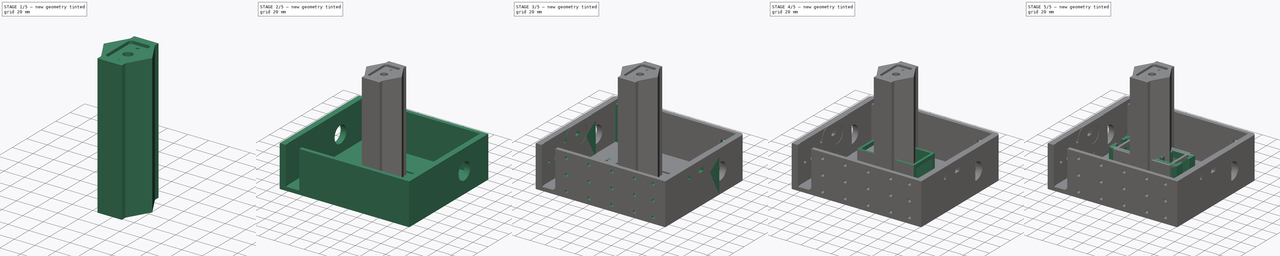
[diagram: build sequence overview — one tinted view per stage of 5, left to right]
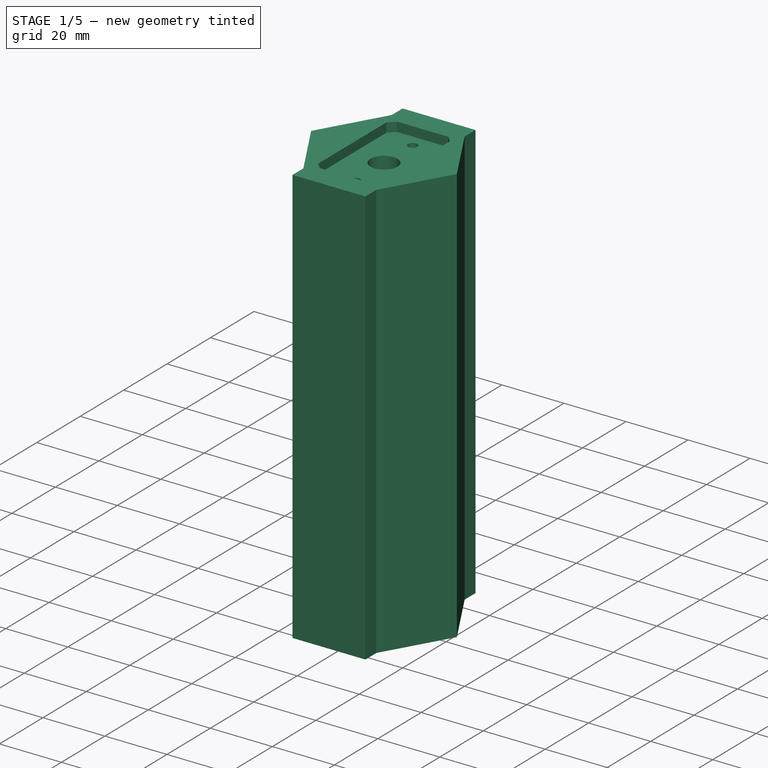
[diagram: stage 1 of 5 — iso view after this stage's code; geometry added in this stage tinted green]
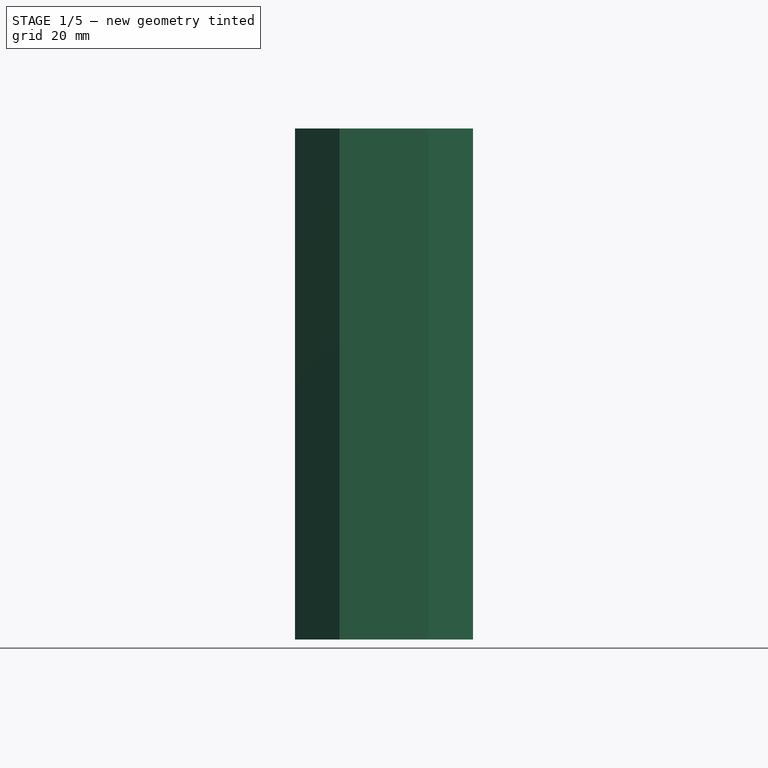
[diagram: stage 1 of 5 — front view after this stage's code; geometry added in this stage tinted green]
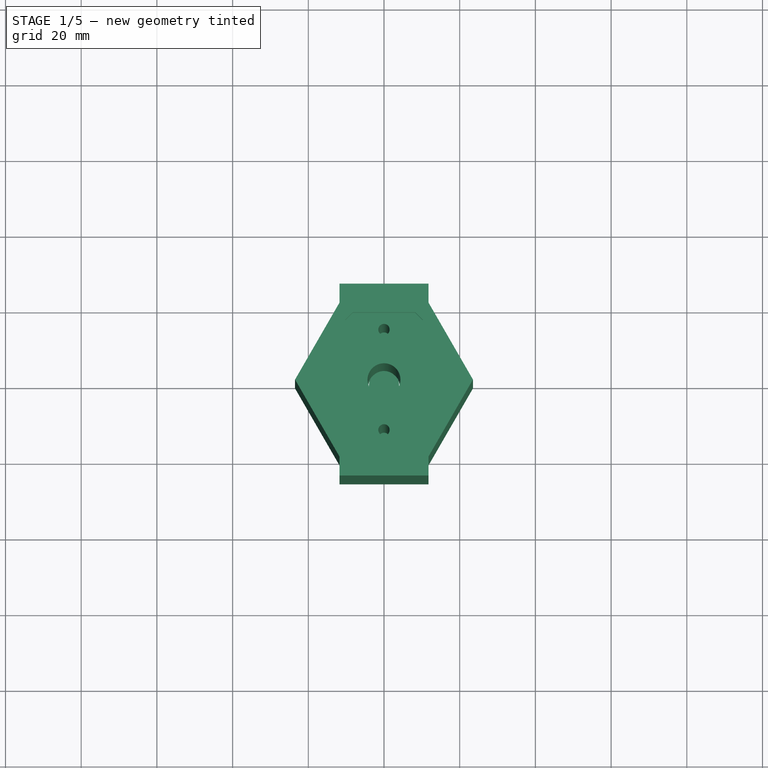
[diagram: stage 1 of 5 — top view after this stage's code; geometry added in this stage tinted green]
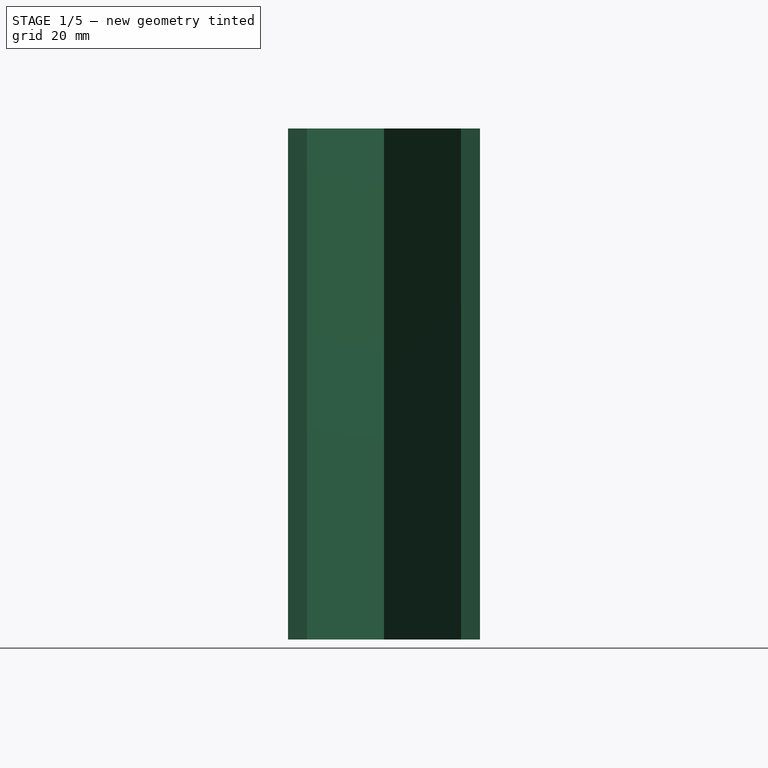
[diagram: stage 1 of 5 — right view after this stage's code; geometry added in this stage tinted green]
FCSTD DOCUMENT  (FreeCAD 1.0R39109 (Git))
Label: BeckbitV3
License: All rights reserved
LicenseURL: https://en.wikipedia.org/wiki/All_rights_reserved
objects: Sketcher::SketchObject×69, PartDesign::Pocket×46, PartDesign::Pad×24, PartDesign::Chamfer×20, PartDesign::Body×18, PartDesign::Fillet×14, PartDesign::FeaturePython×4
note: 476 computed .brp shape members not serialized (recipe doc carries the construction recipe); baked Part::Feature solids carry a one-line shape summary decoded from their .brp

FEATURE [Sketcher::SketchObject] Sketch046
  ArcFitTolerance = 1e-06
  AttachmentSupport = -> [XY_Plane015]
  FullyConstrained = true
  MakeInternals = false
  MapMode = 5
  sketch-geometry (7):
    g0: LineSegment StartX=23.5 StartY=0 StartZ=0 EndX=11.75 EndY=20.3516 EndZ=0
    g1: LineSegment StartX=11.75 StartY=20.3516 StartZ=0 EndX=-11.75 EndY=20.3516 EndZ=0
    g2: LineSegment StartX=-11.75 StartY=20.3516 StartZ=0 EndX=-23.5 EndY=-3.6e-15 EndZ=0
    g3: LineSegment StartX=-23.5 StartY=-3.6e-15 StartZ=0 EndX=-11.75 EndY=-20.3516 EndZ=0
    g4: LineSegment StartX=-11.75 StartY=-20.3516 StartZ=0 EndX=11.75 EndY=-20.3516 EndZ=0
    g5: LineSegment StartX=11.75 StartY=-20.3516 StartZ=0 EndX=23.5 EndY=0 EndZ=0
    g6: Circle [constr] CenterX=0 CenterY=0 CenterZ=0 NormalX=0 NormalY=0 NormalZ=1 AngleXU=0 Radius=23.5
  constraints (16):
    c: Coincident(g0,g1)
    c: Coincident(g1,g2)
    c: Coincident(g2,g3)
    c: Coincident(g3,g4)
    c: Coincident(g4,g5)
    c: Coincident(g5,g0)
    c: Equal(g0, g1-g5) x5
    c: PointOnObject(g0,g6)
    c: PointOnObject(g1,g6)
    c: PointOnObject(g2,g6)
    c: PointOnObject(g3,g6)
    c: PointOnObject(g4,g6)
    c: PointOnObject(g5,g6)
    c: Coincident(g6,g-1)
    c: PointOnObject(g5,g-1)
    c: Diameter(g6) = 47
FEATURE [PartDesign::Pad] Pad016  label="BasePad003"
  Direction = (0,0,1)
  Length = 135
  Length2 = 10
  Profile = -> Sketch046
  ReferenceAxis = -> Sketch046 [N_Axis]
  Refine = true
  Suppressed = false
  Type = 0
FEATURE [Sketcher::SketchObject] Sketch048
  ArcFitTolerance = 1e-06
  FullyConstrained = true
  MakeInternals = false
  MapMode = 5
  Placement = pos=(0,-20.3516,0) rot=(1,0,0;1.5708rad)
  sketch-geometry (4):
    g0: LineSegment StartX=-11.75 StartY=135 StartZ=0 EndX=-11.75 EndY=0 EndZ=0
    g1: LineSegment StartX=-11.75 StartY=0 StartZ=0 EndX=11.75 EndY=0 EndZ=0
    g2: LineSegment StartX=11.75 StartY=0 StartZ=0 EndX=11.75 EndY=135 EndZ=0
    g3: LineSegment StartX=11.75 StartY=135 StartZ=0 EndX=-11.75 EndY=135 EndZ=0
  constraints (10):
    c: Coincident(g0,g1)
    c: Coincident(g1,g2)
    c: Coincident(g2,g3)
    c: Coincident(g3,g0)
    c: Vertical(g0)
    c: Vertical(g2)
    c: Horizontal(g1)
    c: Horizontal(g3)
    c: Coincident(g0,g-5)
    c: Coincident(g1,g-6)
FEATURE [PartDesign::Pad] Pad017  label="ExtendPad"
  BaseFeature = -> Pad016
  Direction = (0,-1,2e-16)
  Length = 5
  Length2 = 10
  Profile = -> Sketch048
  ReferenceAxis = -> Sketch048 [N_Axis]
  Refine = true
  Suppressed = false
  Type = 0
FEATURE [Sketcher::SketchObject] Sketch049
  ArcFitTolerance = 1e-06
  AttachmentSupport = -> [Pad017]
  ExternalGeometry = -> [Pad017]
  FullyConstrained = true
  MakeInternals = false
  MapMode = 5
  Placement = pos=(-3.1e-15,20.3516,0) rot=(0,0.707107,0.707107;3.14159rad)
  sketch-geometry (4):
    g0: LineSegment StartX=-11.75 StartY=135 StartZ=0 EndX=-11.75 EndY=0 EndZ=0
    g1: LineSegment StartX=-11.75 StartY=0 StartZ=0 EndX=11.75 EndY=0 EndZ=0
    g2: LineSegment StartX=11.75 StartY=0 StartZ=0 EndX=11.75 EndY=135 EndZ=0
    g3: LineSegment StartX=11.75 StartY=135 StartZ=0 EndX=-11.75 EndY=135 EndZ=0
  constraints (10):
    c: Coincident(g0,g1)
    c: Coincident(g1,g2)
    c: Coincident(g2,g3)
    c: Coincident(g3,g0)
    c: Vertical(g0)
    c: Vertical(g2)
    c: Horizontal(g1)
    c: Horizontal(g3)
    c: Coincident(g0,g-4)
    c: Coincident(g1,g-6)
FEATURE [PartDesign::Pad] Pad018  label="ExtendPad001"
  BaseFeature = -> Pad017
  Direction = (0,1,-2e-16)
  Length = 5
  Length2 = 10
  Profile = -> Sketch049
  ReferenceAxis = -> Sketch049 [N_Axis]
  Refine = true
  Suppressed = false
  Type = 0
FEATURE [PartDesign::Body] Body001  label="MotorWheelGear"
  AllowCompound = false
  Group = -> [InvoluteGear,Sketch076,Pocket052]
  Origin = -> Origin001
  Placement = pos=(-63.2002,0.413012,28.8959) rot=(-0.129428,-0.983106,0.129428;1.58783rad)
  Tip = -> Pocket052
FEATURE [Sketcher::SketchObject] Sketch077
  ArcFitTolerance = 1e-06
  AttachmentSupport = -> [XY_Plane022]
  FullyConstrained = true
  MakeInternals = false
  MapMode = 5
  sketch-geometry (1):
    g0: Circle CenterX=0 CenterY=0 CenterZ=0 NormalX=0 NormalY=0 NormalZ=1 AngleXU=0 Radius=4
  constraints (2):
    c: Coincident(g0,g-1)
    c: Diameter(g0) = 8
FEATURE [PartDesign::Pad] Pad027
  Direction = (0,0,1)
  Length = 35
  Length2 = 10
  Profile = -> Sketch077
  ReferenceAxis = -> Sketch077 [N_Axis]
  Refine = true
  Suppressed = false
  Type = 0
FEATURE [Sketcher::SketchObject] Sketch078
  ArcFitTolerance = 1e-06
  AttachmentSupport = -> [XY_Plane023]
  FullyConstrained = true
  MakeInternals = false
  MapMode = 5
  sketch-geometry (5):
    g0: LineSegment StartX=-10 StartY=17.5 StartZ=0 EndX=-10 EndY=-17.5 EndZ=0
    g1: LineSegment StartX=-10 StartY=-17.5 StartZ=0 EndX=10 EndY=-17.5 EndZ=0
    g2: LineSegment StartX=10 StartY=-17.5 StartZ=0 EndX=10 EndY=17.5 EndZ=0
    g3: LineSegment StartX=10 StartY=17.5 StartZ=0 EndX=-10 EndY=17.5 EndZ=0
    g4: GeomPoint [constr] X=0 Y=0 Z=0
  constraints (12):
    c: Coincident(g0,g1)
    c: Coincident(g1,g2)
    c: Coincident(g2,g3)
    c: Coincident(g3,g0)
    c: Vertical(g0)
    c: Vertical(g2)
    c: Horizontal(g1)
    c: Horizontal(g3)
    c: Symmetric(g2,g0,g4)
    c: Coincident(g4,g-1)
    c: DistanceY(g0,g0) = 35
    c: DistanceX(g3,g3) = 20
FEATURE [PartDesign::Pad] Pad028  label="BasePad006"
  Direction = (0,0,1)
  Length = 3
  Length2 = 10
  Profile = -> Sketch078
  ReferenceAxis = -> Sketch078 [N_Axis]
  Refine = true
  Suppressed = false
  Type = 0
FEATURE [Sketcher::SketchObject] Sketch079
  ArcFitTolerance = 1e-06
  AttachmentSupport = -> [Pad028]
  FullyConstrained = true
  MakeInternals = false
  MapMode = 5
  Placement = pos=(0,0,3) rot=(0,0,1;0rad)
  sketch-geometry (1):
    g0: Circle CenterX=0 CenterY=0 CenterZ=0 NormalX=0 NormalY=0 NormalZ=1 AngleXU=0 Radius=6
  constraints (2):
    c: Coincident(g0,g-1)
    c: Diameter(g0) = 12
FEATURE [PartDesign::Pad] Pad029  label="AxlePocketPad002"
  BaseFeature = -> Pad028
  Direction = (0,0,1)
  Length = 5
  Length2 = 10
  Profile = -> Sketch079
  ReferenceAxis = -> Sketch079 [N_Axis]
  Refine = true
  Suppressed = false
  Type = 0
FEATURE [Sketcher::SketchObject] Sketch080
  ArcFitTolerance = 1e-06
  AttachmentSupport = -> [Pad029]
  FullyConstrained = true
  MakeInternals = false
  MapMode = 5
  Placement = pos=(0,0,8) rot=(0,0,1;0rad)
  sketch-geometry (1):
    g0: Circle CenterX=0 CenterY=0 CenterZ=0 NormalX=0 NormalY=0 NormalZ=1 AngleXU=0 Radius=4.25
  constraints (2):
    c: Coincident(g0,g-1)
    c: Diameter(g0) = 8.5
FEATURE [PartDesign::Pocket] Pocket053  label="AlxePocket"
  BaseFeature = -> Pad029
  Direction = (0,0,-1)
  Length = 5
  Length2 = 5
  Profile = -> Sketch080
  ReferenceAxis = -> Sketch080 [N_Axis]
  Refine = true
  Suppressed = false
  Type = 1
FEATURE [Sketcher::SketchObject] Sketch081
  ArcFitTolerance = 1e-06
  AttachmentSupport = -> [XZ_Plane023]
  FullyConstrained = true
  MakeInternals = false
  MapMode = 5
  Placement = pos=(0,0,0) rot=(1,0,0;1.5708rad)
  sketch-geometry (1):
    g0: Circle CenterX=0 CenterY=5.6996 CenterZ=0 NormalX=0 NormalY=0 NormalZ=1 AngleXU=0 Radius=1.5
  constraints (3):
    c: PointOnObject(g0,g-2)
    c: Diameter(g0) = 3
    c: Block(g0)
FEATURE [PartDesign::Pocket] Pocket054  label="ScrewPocket014"
  BaseFeature = -> Pocket053
  Direction = (0,1,-2e-16)
  Length = 5
  Length2 = 5
  Midplane = true
  Profile = -> Sketch081
  ReferenceAxis = -> Sketch081 [N_Axis]
  Refine = true
  Suppressed = false
  Type = 1
FEATURE [PartDesign::Body] Body023  label="DrumSpacer"
  AllowCompound = false
  Group = -> [Sketch078,Pad028,Sketch079,Pad029,Sketch080,Pocket053,Sketch081,Pocket054,Sketch082,Pocket055,Chamfer011,Chamfer012,Chamfer013,Chamfer014]
  Origin = -> Origin023
  Placement = pos=(72,-114,28) rot=(0,1,0;1.5708rad)
  Tip = -> Chamfer014
FEATURE [Sketcher::SketchObject] Sketch083
  ArcFitTolerance = 1e-06
  AttachmentSupport = -> [Pad018]
  FullyConstrained = true
  MakeInternals = false
  MapMode = 5
  Placement = pos=(0,0,0) rot=(1,0,0;3.14159rad)
  sketch-geometry (5):
    g0: LineSegment StartX=-10.25 StartY=17.75 StartZ=0 EndX=-10.25 EndY=-17.75 EndZ=0
    g1: LineSegment StartX=-10.25 StartY=-17.75 StartZ=0 EndX=10.25 EndY=-17.75 EndZ=0
    g2: LineSegment StartX=10.25 StartY=-17.75 StartZ=0 EndX=10.25 EndY=17.75 EndZ=0
    g3: LineSegment StartX=10.25 StartY=17.75 StartZ=0 EndX=-10.25 EndY=17.75 EndZ=0
    g4: GeomPoint [constr] X=0 Y=0 Z=0
  constraints (12):
    c: Coincident(g0,g1)
    c: Coincident(g1,g2)
    c: Coincident(g2,g3)
    c: Coincident(g3,g0)
    c: Vertical(g0)
    c: Vertical(g2)
    c: Horizontal(g1)
    c: Horizontal(g3)
    c: Symmetric(g2,g0,g4)
    c: Coincident(g4,g-1)
    c: DistanceX(g3,g3) = 20.5
    c: DistanceY(g0,g0) = 35.5
FEATURE [PartDesign::Pocket] Pocket056  label="SupportBasePocket"
  BaseFeature = -> Pad018
  Direction = (0,0,1)
  Length = 3
  Length2 = 5
  Profile = -> Sketch083
  ReferenceAxis = -> Sketch083 [N_Axis]
  Refine = true
  Suppressed = false
  Type = 0
FEATURE [Sketcher::SketchObject] Sketch084
  ArcFitTolerance = 1e-06
  AttachmentSupport = -> [Pocket056]
  FullyConstrained = true
  MakeInternals = false
  MapMode = 5
  Placement = pos=(0,0,135) rot=(0,0,1;0rad)
  sketch-geometry (5):
    g0: LineSegment StartX=-10.25 StartY=17.75 StartZ=0 EndX=-10.25 EndY=-17.75 EndZ=0
    g1: LineSegment StartX=-10.25 StartY=-17.75 StartZ=0 EndX=10.25 EndY=-17.75 EndZ=0
    g2: LineSegment StartX=10.25 StartY=-17.75 StartZ=0 EndX=10.25 EndY=17.75 EndZ=0
    g3: LineSegment StartX=10.25 StartY=17.75 StartZ=0 EndX=-10.25 EndY=17.75 EndZ=0
    g4: GeomPoint [constr] X=0 Y=0 Z=0
  constraints (12):
    c: Coincident(g0,g1)
    c: Coincident(g1,g2)
    c: Coincident(g2,g3)
    c: Coincident(g3,g0)
    c: Vertical(g0)
    c: Vertical(g2)
    c: Horizontal(g1)
    c: Horizontal(g3)
    c: Symmetric(g2,g0,g4)
    c: Coincident(g4,g-1)
    c: DistanceX(g3,g3) = 20.5
    c: DistanceY(g0,g0) = 35.5
FEATURE [PartDesign::Pocket] Pocket057  label="SupportBasePocket001"
  BaseFeature = -> Pocket056
  Direction = (0,0,-1)
  Length = 3
  Length2 = 5
  Profile = -> Sketch084
  ReferenceAxis = -> Sketch084 [N_Axis]
  Refine = true
  Suppressed = false
  Type = 0
FEATURE [Sketcher::SketchObject] Sketch085
  ArcFitTolerance = 1e-06
  AttachmentSupport = -> [Pocket057]
  ExternalGeometry = -> [Pocket057]
  FullyConstrained = true
  MakeInternals = false
  MapMode = 5
  Placement = pos=(0,0,132) rot=(0,0,1;0rad)
  sketch-geometry (5):
    g0: GeomPoint [constr] X=0 Y=17.75 Z=0
    g1: GeomPoint [constr] X=0 Y=-17.75 Z=0
    g2: Circle CenterX=0 CenterY=13.25 CenterZ=0 NormalX=0 NormalY=0 NormalZ=1 AngleXU=0 Radius=1.5
    g3: Circle CenterX=0 CenterY=-13.25 CenterZ=0 NormalX=0 NormalY=0 NormalZ=1 AngleXU=0 Radius=1.5
    g4: Circle CenterX=0 CenterY=0 CenterZ=0 NormalX=0 NormalY=0 NormalZ=1 AngleXU=0 Radius=4.35
  constraints (10):
    c: Symmetric(g-3,g-3,g0)
    c: Symmetric(g-4,g-4,g1)
    c: PointOnObject(g2,g-2)
    c: PointOnObject(g3,g-2)
    c: Equal(g3,g2)
    c: Diameter(g3) = 3
    c: Distance(g2,g0) = 4.5
    c: Distance(g1,g3) = 4.5
    c: Coincident(g4,g-1)
    c: Diameter(g4) = 8.7
FEATURE [PartDesign::Pocket] Pocket058  label="AlxePocket001"
  BaseFeature = -> Pocket057
  Direction = (0,0,-1)
  Length = 25
  Length2 = 5
  Profile = -> Sketch085
  ReferenceAxis = -> Sketch085 [N_Axis]
  Refine = true
  Suppressed = false
  Type = 1
FEATURE [PartDesign::Chamfer] Chamfer015
  Angle = 45
  Base = -> Pocket058 [Edge44]
  BaseFeature = -> Pocket058
  ChamferType = 0
  FlipDirection = false
  Refine = true
  Size = 2
  Size2 = 1
  SupportTransform = false
  Suppressed = false
  UseAllEdges = false
FEATURE [PartDesign::Chamfer] Chamfer016
  Angle = 45
  Base = -> Chamfer015 [Edge23]
  BaseFeature = -> Chamfer015
  ChamferType = 0
  FlipDirection = false
  Refine = true
  Size = 2
  Size2 = 1
  SupportTransform = false
  Suppressed = false
  UseAllEdges = false
FEATURE [PartDesign::Chamfer] Chamfer017
  Angle = 45
  Base = -> Chamfer016 [Edge26]
  BaseFeature = -> Chamfer016
  ChamferType = 0
  FlipDirection = false
  Refine = true
  Size = 2
  Size2 = 1
  SupportTransform = false
  Suppressed = false
  UseAllEdges = false
FEATURE [PartDesign::Chamfer] Chamfer018
  Angle = 45
  Base = -> Chamfer017 [Edge25]
  BaseFeature = -> Chamfer017
  ChamferType = 0
  FlipDirection = false
  Refine = true
  Size = 2
  Size2 = 1
  SupportTransform = false
  Suppressed = false
  UseAllEdges = false
FEATURE [PartDesign::Chamfer] Chamfer019
  Angle = 45
  Base = -> Chamfer018 [Edge73]
  BaseFeature = -> Chamfer018
  ChamferType = 0
  FlipDirection = false
  Refine = true
  Size = 2
  Size2 = 1
  SupportTransform = false
  Suppressed = false
  UseAllEdges = false
FEATURE [PartDesign::Chamfer] Chamfer020
  Angle = 45
  Base = -> Chamfer019 [Edge23]
  BaseFeature = -> Chamfer019
  ChamferType = 0
  FlipDirection = false
  Refine = true
  Size = 2
  Size2 = 1
  SupportTransform = false
  Suppressed = false
  UseAllEdges = false
FEATURE [PartDesign::Chamfer] Chamfer021
  Angle = 45
  Base = -> Chamfer020 [Edge26]
  BaseFeature = -> Chamfer020
  ChamferType = 0
  FlipDirection = false
  Refine = true
  Size = 2
  Size2 = 1
  SupportTransform = false
  Suppressed = false
  UseAllEdges = false
FEATURE [PartDesign::Chamfer] Chamfer022
  Angle = 45
  Base = -> Chamfer021 [Edge25]
  BaseFeature = -> Chamfer021
  ChamferType = 0
  FlipDirection = false
  Refine = true
  Size = 2
  Size2 = 1
  SupportTransform = false
  Suppressed = false
  UseAllEdges = false
FEATURE [PartDesign::Body] Body015  label="Drum"
  AllowCompound = false
  Group = -> [Sketch046,Pad016,Sketch048,Pad017,Sketch049,Pad018,Sketch083,Pocket056,Sketch084,Pocket057,Sketch085,Pocket058,Chamfer015,Chamfer016,Chamfer017,Chamfer018,Chamfer019,Chamfer020,Chamfer021,Chamfer022]
  Origin = -> Origin015
  Placement = pos=(-60,-114,28) rot=(0,1,0;1.5708rad)
  Tip = -> Chamfer022
FEATURE [Sketcher::SketchObject] Sketch086
  ArcFitTolerance = 1e-06
  AttachmentSupport = -> [XZ_Plane022]
  FullyConstrained = true
  MakeInternals = false
  MapMode = 5
  Placement = pos=(0,0,0) rot=(1,0,0;1.5708rad)
  sketch-geometry (2):
    g0: Circle CenterX=0 CenterY=20.8691 CenterZ=0 NormalX=0 NormalY=0 NormalZ=1 AngleXU=0 Radius=1.5
    g1: Circle CenterX=0 CenterY=10.8691 CenterZ=0 NormalX=0 NormalY=0 NormalZ=1 AngleXU=0 Radius=1.5
  constraints (6):
    c: PointOnObject(g0,g-2)
    c: Diameter(g0) = 3
    c: PointOnObject(g1,g-2)
    c: Diameter(g1) = 3
    c: Distance(g0,g1) = 7
    c: Block(g1)
FEATURE [PartDesign::Pocket] Pocket059  label="ScrewPocket016"
  BaseFeature = -> Pad027
  Direction = (0,1,-2e-16)
  Length = 5
  Length2 = 5
  Midplane = true
  Profile = -> Sketch086
  ReferenceAxis = -> Sketch086 [N_Axis]
  Refine = true
  Suppressed = false
  Type = 1
FEATURE [PartDesign::Body] Body022  label="DrumAxleGear"
  AllowCompound = false
  Group = -> [Sketch077,Pad027,Sketch086,Pocket059]
  Origin = -> Origin022
  Placement = pos=(-86,-114,63) rot=(0,1,0;1.5708rad)
  Tip = -> Pocket059
FEATURE [Sketcher::SketchObject] Sketch087
  ArcFitTolerance = 1e-06
  AttachmentSupport = -> [XY_Plane024]
  FullyConstrained = true
  MakeInternals = false
  MapMode = 5
  sketch-geometry (1):
    g0: Circle CenterX=0 CenterY=0 CenterZ=0 NormalX=0 NormalY=0 NormalZ=1 AngleXU=0 Radius=4
  constraints (2):
    c: Coincident(g0,g-1)
    c: Diameter(g0) = 8
FEATURE [PartDesign::Pad] Pad030
  Direction = (0,0,1)
  Length = 25
  Length2 = 10
  Profile = -> Sketch087
  ReferenceAxis = -> Sketch087 [N_Axis]
  Refine = true
  Suppressed = false
  Type = 0
FEATURE [Sketcher::SketchObject] Sketch088
  ArcFitTolerance = 1e-06
  AttachmentSupport = -> [XZ_Plane024]
  FullyConstrained = true
  MakeInternals = false
  MapMode = 5
  Placement = pos=(0,0,0) rot=(1,0,0;1.5708rad)
  sketch-geometry (1):
    g0: Circle CenterX=0 CenterY=15.0509 CenterZ=0 NormalX=0 NormalY=0 NormalZ=1 AngleXU=0 Radius=1.5
  constraints (3):
    c: PointOnObject(g0,g-2)
    c: Diameter(g0) = 3
    c: Block(g0)
FEATURE [PartDesign::Pocket] Pocket060  label="ScrewPocket017"
  BaseFeature = -> Pad030
  Direction = (0,1,-2e-16)
  Length = 5
  Length2 = 5
  Midplane = true
  Profile = -> Sketch088
  ReferenceAxis = -> Sketch088 [N_Axis]
  Refine = true
  Suppressed = false
  Type = 1
FEATURE [PartDesign::Body] Body024  label="DrumAxle"
  AllowCompound = false
  Group = -> [Sketch087,Pad030,Sketch088,Pocket060]
  Origin = -> Origin024
  Placement = pos=(61,-114,64) rot=(0,1,0;1.5708rad)
  Tip = -> Pocket060
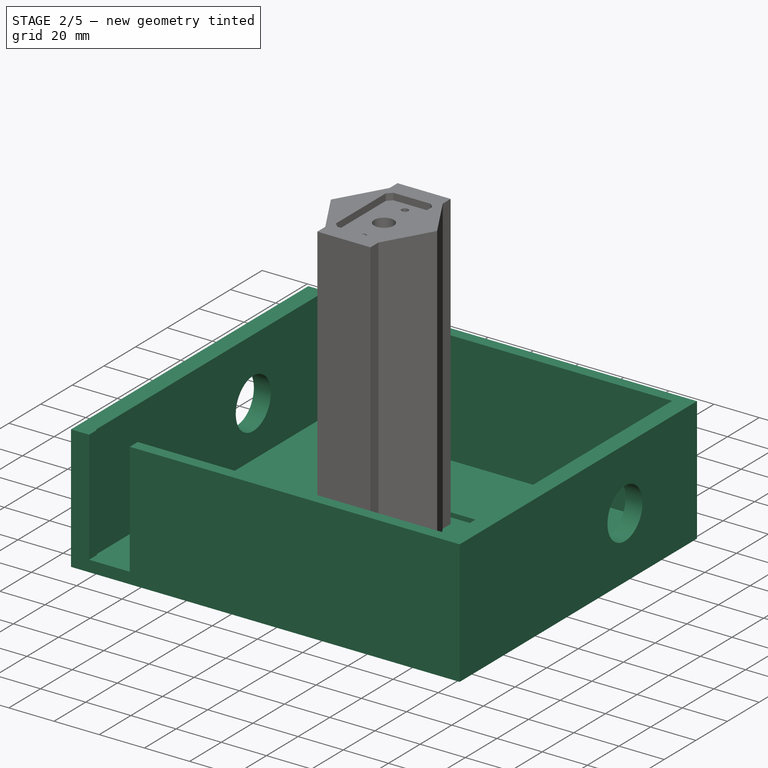
[diagram: stage 2 of 5 — iso view after this stage's code; geometry added in this stage tinted green]
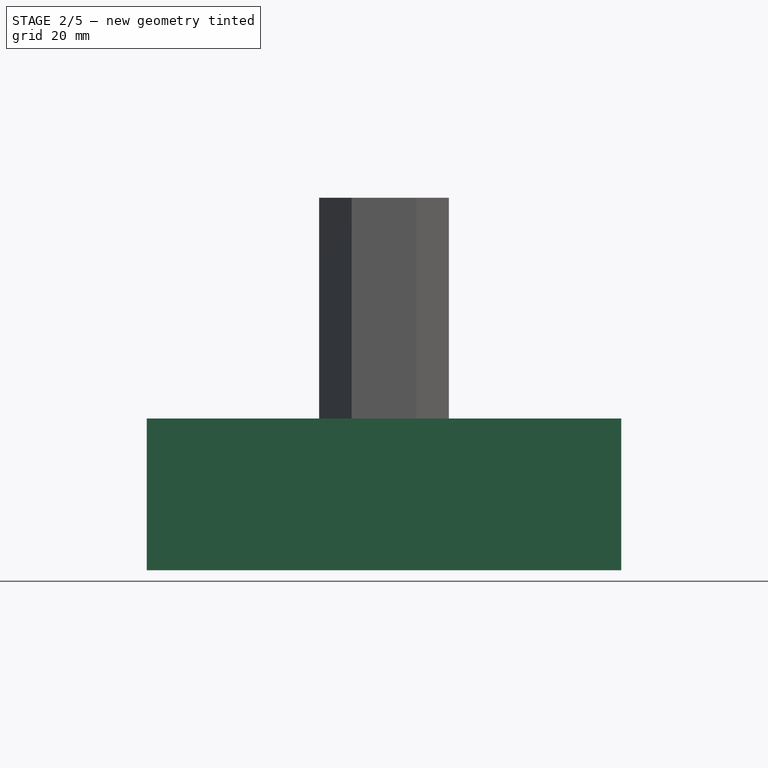
[diagram: stage 2 of 5 — front view after this stage's code; geometry added in this stage tinted green]
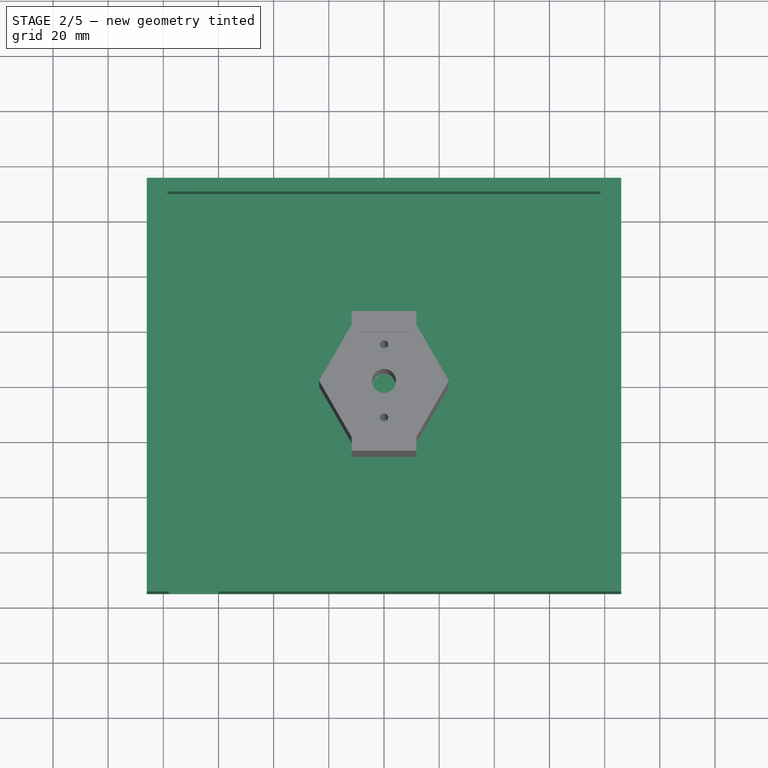
[diagram: stage 2 of 5 — top view after this stage's code; geometry added in this stage tinted green]
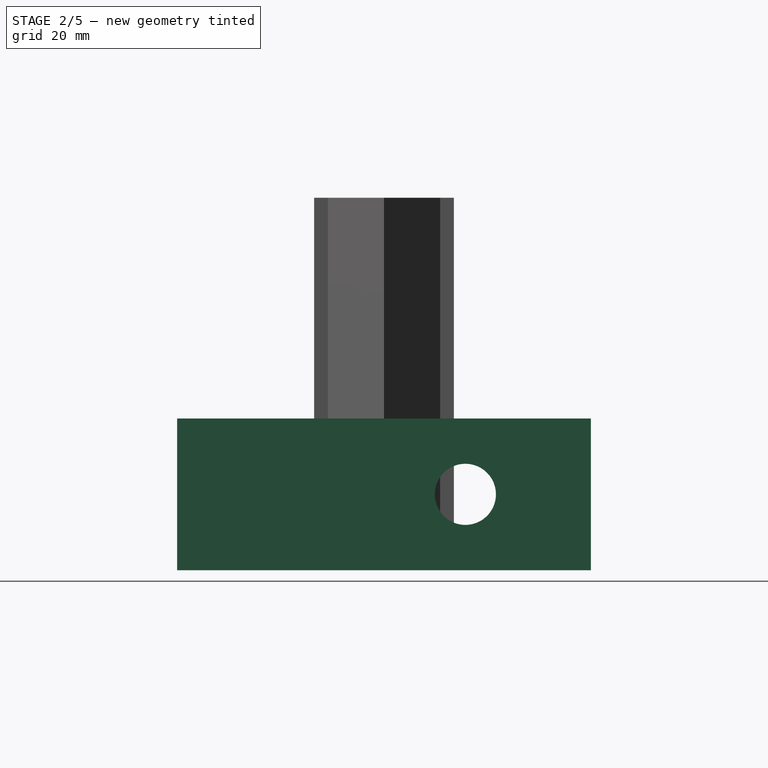
[diagram: stage 2 of 5 — right view after this stage's code; geometry added in this stage tinted green]
FEATURE [Sketcher::SketchObject] Sketch
  ArcFitTolerance = 1e-06
  AttachmentSupport = -> [XY_Plane]
  FullyConstrained = true
  MakeInternals = false
  MapMode = 5
  sketch-geometry (5):
    g0: LineSegment StartX=-86 StartY=75 StartZ=0 EndX=-86 EndY=-75 EndZ=0
    g1: LineSegment StartX=-86 StartY=-75 StartZ=0 EndX=86 EndY=-75 EndZ=0
    g2: LineSegment StartX=86 StartY=-75 StartZ=0 EndX=86 EndY=75 EndZ=0
    g3: LineSegment StartX=86 StartY=75 StartZ=0 EndX=-86 EndY=75 EndZ=0
    g4: GeomPoint [constr] X=0 Y=0 Z=0
  constraints (12):
    c: Coincident(g0,g1)
    c: Coincident(g1,g2)
    c: Coincident(g2,g3)
    c: Coincident(g3,g0)
    c: Vertical(g0)
    c: Vertical(g2)
    c: Horizontal(g1)
    c: Horizontal(g3)
    c: Symmetric(g2,g0,g4)
    c: Coincident(g4,g-1)
    c: DistanceX(g3,g3) = 172
    c: DistanceY(g0,g0) = 150
FEATURE [PartDesign::Pad] Pad  label="ChassiBasePad"
  Direction = (0,0,1)
  Length = 55
  Length2 = 10
  Profile = -> Sketch
  ReferenceAxis = -> Sketch [N_Axis]
  Refine = true
  Suppressed = false
  Type = 0
FEATURE [Sketcher::SketchObject] Sketch001
  ArcFitTolerance = 1e-06
  AttachmentSupport = -> [Pad]
  ExternalGeometry = -> [Pad]
  FullyConstrained = true
  MakeInternals = false
  MapMode = 5
  Placement = pos=(0,0,55) rot=(0,0,1;0rad)
  sketch-geometry (7):
    g0: LineSegment StartX=-78.5 StartY=70 StartZ=0 EndX=-78.5 EndY=-70 EndZ=0
    g1: LineSegment StartX=-78.5 StartY=-70 StartZ=0 EndX=78.5 EndY=-70 EndZ=0
    g2: LineSegment StartX=78.5 StartY=-70 StartZ=0 EndX=78.5 EndY=70 EndZ=0
    g3: LineSegment StartX=78.5 StartY=70 StartZ=0 EndX=-78.5 EndY=70 EndZ=0
    g4: GeomPoint [constr] X=0 Y=0 Z=0
    g5: GeomPoint [constr] X=0 Y=75 Z=0
    g6: GeomPoint [constr] X=-86 Y=0 Z=0
  constraints (14):
    c: Coincident(g0,g1)
    c: Coincident(g1,g2)
    c: Coincident(g2,g3)
    c: Coincident(g3,g0)
    c: Vertical(g0)
    c: Vertical(g2)
    c: Horizontal(g1)
    c: Horizontal(g3)
    c: Symmetric(g2,g0,g4)
    c: Coincident(g4,g-1)
    c: Symmetric(g-4,g-4,g5)
    c: Symmetric(g-3,g-3,g6)
    c: Distance(g5,g3) = 5
    c: Distance(g6,g0) = 7.5
FEATURE [PartDesign::Pocket] Pocket  label="ChassiBasePocket"
  BaseFeature = -> Pad
  Direction = (0,0,-1)
  Length = 50
  Length2 = 5
  Profile = -> Sketch001
  ReferenceAxis = -> Sketch001 [N_Axis]
  Refine = true
  Suppressed = false
  Type = 0
FEATURE [Sketcher::SketchObject] Sketch002
  ArcFitTolerance = 1e-06
  AttachmentSupport = -> [Pocket]
  ExternalGeometry = -> [Pocket]
  FullyConstrained = true
  MakeInternals = false
  MapMode = 5
  Placement = pos=(86,0,0) rot=(0.57735,0.57735,0.57735;2.0944rad)
  sketch-geometry (2):
    g0: LineSegment [constr] StartX=29.5 StartY=55 StartZ=0 EndX=29.5 EndY=0 EndZ=0
    g1: Circle CenterX=29.5 CenterY=27.5 CenterZ=0 NormalX=0 NormalY=0 NormalZ=1 AngleXU=0 Radius=11.075
  constraints (6):
    c: PointOnObject(g0,g-3)
    c: PointOnObject(g0,g-4)
    c: Vertical(g0)
    c: Symmetric(g0,g0,g1)
    c: Diameter(g1) = 22.15
    c: DistanceX(g-2,g1) = 29.5
FEATURE [PartDesign::Pocket] Pocket001  label="WheelBearingPocket"
  BaseFeature = -> Pocket
  Direction = (-1,0,0)
  Length = 5
  Length2 = 5
  Profile = -> Sketch002
  ReferenceAxis = -> Sketch002 [N_Axis]
  Refine = true
  Suppressed = false
  Type = 1
FEATURE [Sketcher::SketchObject] Sketch003
  ArcFitTolerance = 1e-06
  AttachmentSupport = -> [Pocket001]
  ExternalGeometry = -> [Pocket001]
  FullyConstrained = true
  MakeInternals = false
  MapMode = 5
  Placement = pos=(0,-75,0) rot=(1,0,0;1.5708rad)
  sketch-geometry (5):
    g0: LineSegment StartX=-78 StartY=55 StartZ=0 EndX=-78 EndY=5 EndZ=0
    g1: LineSegment StartX=-78 StartY=5 StartZ=0 EndX=-60 EndY=5 EndZ=0
    g2: LineSegment StartX=-60 StartY=5 StartZ=0 EndX=-60 EndY=55 EndZ=0
    g3: LineSegment StartX=-60 StartY=55 StartZ=0 EndX=-78 EndY=55 EndZ=0
    g4: GeomPoint [constr] X=-86 Y=27.5 Z=0
  constraints (13):
    c: Coincident(g0,g1)
    c: Coincident(g1,g2)
    c: Coincident(g2,g3)
    c: Coincident(g3,g0)
    c: Vertical(g0)
    c: Vertical(g2)
    c: Horizontal(g1)
    c: Horizontal(g3)
    c: PointOnObject(g0,g-3)
    c: DistanceX(g3,g3) = 18
    c: DistanceY(g2,g2) = 50
    c: Symmetric(g-4,g-4,g4)
    c: Distance(g4,g0) = 8
FEATURE [PartDesign::Pocket] Pocket002  label="WeaponBasePocket"
  BaseFeature = -> Pocket001
  Direction = (0,1,-2e-16)
  Length = 5
  Length2 = 5
  Profile = -> Sketch003
  ReferenceAxis = -> Sketch003 [N_Axis]
  Refine = true
  Suppressed = false
  Type = 0
FEATURE [PartDesign::FeaturePython] InvoluteGear  # WARN: FeaturePython — macro-defined, semantics opaque (R4)
  AttacherType = Attacher::AttachEngine3D
  Suppressed = false
  addendum_diameter = 24
  angular_backlash = 0
  axle_hole = false
  axle_holesize = 10
  backlash = 0
  clearance = 0.25
  double_helix = false
  head = 0
  head_fillet = 0
  height = 10
  helix_angle = 0
  module = 1
  num_teeth = 22
  numpoints = 20
  offset_hole = false
  offset_holeoffset = 10
  offset_holesize = 10
  pitch_diameter = 22
  pressure_angle = 20
  properties_from_tool = false
  reversed_backlash = false
  root_diameter = 19.5
  root_fillet = 0
  shift = 0
  simple = false
  transverse_pitch = 3.14159
  traverse_module = 1
  undercut = false
  version = 1.3.0
  expr: angular_backlash = backlash / pitch_diameter * 360 ° / pi
FEATURE [PartDesign::Body] Body003  label="BatteryBox"
  AllowCompound = false
  Group = -> [Sketch008,Pad002,Sketch009,Pocket006,Sketch010,Pocket007,Sketch011,Pocket008,Sketch012,Pocket009,Chamfer,Chamfer001,Chamfer002,Chamfer003,Fillet,Fillet001,Fillet002,Fillet003]
  Origin = -> Origin003
  Placement = pos=(0,47,7) rot=(0,0,1;0rad)
  Tip = -> Fillet003
FEATURE [Sketcher::SketchObject] Sketch013
  ArcFitTolerance = 1e-06
  AttachmentSupport = -> [Pocket002]
  ExternalGeometry = -> [Pocket002]
  FullyConstrained = true
  MakeInternals = false
  MapMode = 5
  Placement = pos=(0,0,5) rot=(0,0,1;0rad)
  sketch-geometry (31):
    g0: LineSegment StartX=-45 StartY=65 StartZ=0 EndX=-45 EndY=30 EndZ=0
    g1: LineSegment StartX=-45 StartY=30 StartZ=0 EndX=45 EndY=30 EndZ=0
    g2: LineSegment StartX=45 StartY=30 StartZ=0 EndX=45 EndY=65 EndZ=0
    g3: LineSegment StartX=45 StartY=65 StartZ=0 EndX=-45 EndY=65 EndZ=0
    g4: GeomPoint [constr] X=0 Y=47.5 Z=0
    g5: GeomPoint [constr] X=0 Y=70 Z=0
    g6: LineSegment StartX=-60 StartY=20.5 StartZ=0 EndX=-60 EndY=-20.5 EndZ=0
    g7: LineSegment StartX=-60 StartY=-20.5 StartZ=0 EndX=-39 EndY=-20.5 EndZ=0
    g8: LineSegment StartX=-39 StartY=-20.5 StartZ=0 EndX=-39 EndY=20.5 EndZ=0
    g9: LineSegment StartX=-39 StartY=20.5 StartZ=0 EndX=-60 EndY=20.5 EndZ=0
    g10: GeomPoint [constr] X=-49.5 Y=0 Z=0
    g11: LineSegment StartX=-60 StartY=-25.6522 StartZ=0 EndX=-60 EndY=-66.6522 EndZ=0
    g12: LineSegment StartX=-60 StartY=-66.6522 StartZ=0 EndX=-39 EndY=-66.6522 EndZ=0
    g13: LineSegment StartX=-39 StartY=-66.6522 StartZ=0 EndX=-39 EndY=-25.6522 EndZ=0
    g14: LineSegment StartX=-39 StartY=-25.6522 StartZ=0 EndX=-60 EndY=-25.6522 EndZ=0
    g15: GeomPoint [constr] X=-49.5 Y=-46.1522 Z=0
    g16: GeomPoint [constr] X=-78 Y=-2.5 Z=0
    g17: GeomPoint [constr] X=-49.5 Y=-25.6522 Z=0
    g18: GeomPoint [constr] X=-49.5 Y=-20.5 Z=0
    g19: LineSegment StartX=0.5 StartY=-25 StartZ=0 EndX=0.5 EndY=-65 EndZ=0
    g20: LineSegment StartX=0.5 StartY=-65 StartZ=0 EndX=75.5 EndY=-65 EndZ=0
    g21: LineSegment StartX=75.5 StartY=-65 StartZ=0 EndX=75.5 EndY=-25 EndZ=0
    g22: LineSegment StartX=75.5 StartY=-25 StartZ=0 EndX=0.5 EndY=-25 EndZ=0
    g23: GeomPoint [constr] X=9 Y=-70 Z=0
    g24: GeomPoint [constr] X=78.5 Y=6.149e-12 Z=0
    g25: LineSegment StartX=60 StartY=20.5 StartZ=0 EndX=60 EndY=-20.5 EndZ=0
    g26: LineSegment StartX=60 StartY=-20.5 StartZ=0 EndX=39 EndY=-20.5 EndZ=0
    g27: LineSegment StartX=39 StartY=-20.5 StartZ=0 EndX=39 EndY=20.5 EndZ=0
    g28: LineSegment StartX=39 StartY=20.5 StartZ=0 EndX=60 EndY=20.5 EndZ=0
    g29: GeomPoint [constr] X=49.5 Y=0 Z=0
    g30: GeomPoint [constr] X=49.5 Y=-20.5 Z=0
  constraints (70):
    c: Coincident(g0,g1)
    c: Coincident(g1,g2)
    c: Coincident(g2,g3)
    c: Coincident(g3,g0)
    c: Vertical(g0)
    c: Vertical(g2)
    c: Horizontal(g1)
    c: Horizontal(g3)
    c: Symmetric(g2,g0,g4)
    c: PointOnObject(g4,g-2)
    c: DistanceX(g3,g3) = 90
    c: DistanceY(g0,g0) = 35
    c: Symmetric(g-3,g-3,g5)
    c: Distance(g5,g3) = 5
    c: Coincident(g6,g7)
    c: Coincident(g7,g8)
    c: Coincident(g8,g9)
    c: Coincident(g9,g6)
    c: Vertical(g6)
    c: Vertical(g8)
    c: Horizontal(g7)
    c: Horizontal(g9)
    c: Symmetric(g8,g6,g10)
    c: PointOnObject(g10,g-1)
    c: Coincident(g11,g12)
    c: Coincident(g12,g13)
    c: Coincident(g13,g14)
    c: Coincident(g14,g11)
    c: Vertical(g11)
    c: Vertical(g13)
    c: Horizontal(g12)
    c: Horizontal(g14)
    c: Symmetric(g13,g11,g15)
    c: DistanceX(g9,g9) = 21
    c: DistanceX(g14,g14) = 21
    c: DistanceY(g6,g6) = 41
    c: DistanceY(g11,g11) = 41
    c: Symmetric(g-4,g-4,g16)
    c: Distance(g16,g6) = 18
    c: Symmetric(g14,g14,g17)
    c: Symmetric(g7,g7,g18)
    c: Coincident(g19,g20)
    c: Coincident(g20,g21)
    c: Coincident(g21,g22)
    c: Coincident(g22,g19)
    c: Vertical(g19)
    c: Vertical(g21)
    c: Horizontal(g20)
    c: Horizontal(g22)
    c: Symmetric(g-5,g-5,g23)
    c: Distance(g23,g20) = 5
    c: DistanceX(g22,g22) = 75
    c: DistanceY(g19,g19) = 40
    c: Symmetric(g-6,g-6,g24)
    c: Distance(g24,g21) = 3
    c: Distance(g16,g11) = 18
    c: Block(g11)
    c: Block(g12)
    c: Coincident(g25,g26)
    c: Coincident(g26,g27)
    c: Coincident(g27,g28)
    c: Coincident(g28,g25)
    c: Vertical(g25)
    c: Vertical(g27)
    c: Horizontal(g26)
    c: Horizontal(g28)
    c: Symmetric(g27,g25,g29)
    c: Symmetric(g26,g26,g30)
    c: Block(g27)
    c: Block(g28)
FEATURE [PartDesign::Pad] Pad003  label="ComponentBasePad"
  BaseFeature = -> Pocket002
  Direction = (0,0,1)
  Length = 2
  Length2 = 10
  Profile = -> Sketch013
  ReferenceAxis = -> Sketch013 [N_Axis]
  Refine = true
  Suppressed = false
  Type = 0
FEATURE [PartDesign::FeaturePython] TimingGear  # WARN: FeaturePython — macro-defined, semantics opaque (R4)
  AttacherType = Attacher::AttachEngine3D
  Suppressed = false
  h = 0.75
  height = 8
  num_teeth = 20
  offset = 0.4
  pitch = 2
  r0 = 0.555
  r1 = 1
  rs = 0.15
  type = 0
  u = 0.254
  version = 1.3.0
FEATURE [PartDesign::Body] Body  label="Chassi"
  AllowCompound = false
  Group = -> [Sketch,Pad,Sketch001,Pocket,Sketch002,Pocket001,Sketch003,Pocket002,Sketch013,Pad003,Pad010,Sketch038,Pocket025,Sketch039,Pocket026,Sketch040,Pocket027,Sketch058,Pad022,Sketch059,Pocket039,Sketch060,Pocket040,Sketch064,Pocket043,Fillet012,Fillet013,Sketch066,Pocket045,Chamfer009,Sketch067,Pocket046]
  Origin = -> Origin
  Tip = -> Pocket046
FEATURE [Sketcher::SketchObject] Sketch068
  ArcFitTolerance = 1e-06
  AttachmentSupport = -> [TimingGear]
  FullyConstrained = true
  MakeInternals = false
  MapMode = 5
  Placement = pos=(0,0,0) rot=(1,0,0;3.14159rad)
  sketch-geometry (1):
    g0: Circle CenterX=0 CenterY=0 CenterZ=0 NormalX=0 NormalY=0 NormalZ=1 AngleXU=0 Radius=2.1
  constraints (2):
    c: Coincident(g0,g-1)
    c: Diameter(g0) = 4.2
FEATURE [PartDesign::Pocket] Pocket047
  BaseFeature = -> TimingGear
  Direction = (0,0,1)
  Length = 5
  Length2 = 5
  Profile = -> Sketch068
  ReferenceAxis = -> Sketch068 [N_Axis]
  Refine = true
  Suppressed = false
  Type = 1
FEATURE [PartDesign::Body] Body016  label="MotorPulleyGear"
  AllowCompound = false
  Group = -> [TimingGear,Sketch068,Pocket047]
  Origin = -> Origin016
  Placement = pos=(-73,-46,29) rot=(0,1,0;1.5708rad)
  Tip = -> Pocket047
FEATURE [Sketcher::SketchObject] Sketch069
  ArcFitTolerance = 1e-06
  AttachmentSupport = -> [XY_Plane020]
  FullyConstrained = true
  MakeInternals = false
  MapMode = 5
  sketch-geometry (1):
    g0: Circle CenterX=0 CenterY=0 CenterZ=0 NormalX=0 NormalY=0 NormalZ=1 AngleXU=0 Radius=4
  constraints (2):
    c: Coincident(g0,g-1)
    c: Diameter(g0) = 8
FEATURE [PartDesign::Pad] Pad024
  Direction = (0,0,1)
  Length = 42
  Length2 = 10
  Profile = -> Sketch069
  ReferenceAxis = -> Sketch069 [N_Axis]
  Refine = true
  Suppressed = false
  Type = 0
FEATURE [Sketcher::SketchObject] Sketch070
  ArcFitTolerance = 1e-06
  AttachmentSupport = -> [YZ_Plane020]
  FullyConstrained = true
  MakeInternals = false
  MapMode = 5
  Placement = pos=(0,0,0) rot=(0.57735,0.57735,0.57735;2.0944rad)
  sketch-geometry (2):
    g0: Circle CenterX=0 CenterY=30.8118 CenterZ=0 NormalX=0 NormalY=0 NormalZ=1 AngleXU=0 Radius=1.5
    g1: Circle CenterX=0 CenterY=5.52442 CenterZ=0 NormalX=0 NormalY=0 NormalZ=1 AngleXU=0 Radius=1.5
  constraints (6):
    c: PointOnObject(g0,g-2)
    c: Diameter(g0) = 3
    c: PointOnObject(g1,g-2)
    c: Diameter(g1) = 3
    c: Block(g0)
    c: Block(g1)
FEATURE [PartDesign::Pocket] Pocket048  label="ScrewPocket010"
  BaseFeature = -> Pad024
  Direction = (-1,0,0)
  Length = 5
  Length2 = 5
  Midplane = true
  Profile = -> Sketch070
  ReferenceAxis = -> Sketch070 [N_Axis]
  Refine = true
  Suppressed = false
  Type = 1
FEATURE [PartDesign::Body] Body020  label="WheelAxle"
  AllowCompound = false
  Group = -> [Sketch069,Pad024,Sketch070,Pocket048]
  Origin = -> Origin020
  Placement = pos=(-103,30,63) rot=(0,1,0;1.5708rad)
  Tip = -> Pocket048
FEATURE [Sketcher::SketchObject] Sketch072
  ArcFitTolerance = 1e-06
  AttachmentSupport = -> [XY_Plane021]
  FullyConstrained = true
  MakeInternals = false
  MapMode = 5
  sketch-geometry (1):
    g0: Circle CenterX=0 CenterY=0 CenterZ=0 NormalX=0 NormalY=0 NormalZ=1 AngleXU=0 Radius=10
  constraints (2):
    c: Coincident(g0,g-1)
    c: Diameter(g0) = 20
FEATURE [PartDesign::Pad] Pad025  label="BasePad005"
  Direction = (0,0,1)
  Length = 3
  Length2 = 10
  Profile = -> Sketch072
  ReferenceAxis = -> Sketch072 [N_Axis]
  Refine = true
  Suppressed = false
  Type = 0
FEATURE [Sketcher::SketchObject] Sketch073
  ArcFitTolerance = 1e-06
  AttachmentSupport = -> [Pad025]
  FullyConstrained = true
  MakeInternals = false
  MapMode = 5
  Placement = pos=(0,0,3) rot=(0,0,1;0rad)
  sketch-geometry (1):
    g0: Circle CenterX=0 CenterY=0 CenterZ=0 NormalX=0 NormalY=0 NormalZ=1 AngleXU=0 Radius=6
  constraints (2):
    c: Coincident(g0,g-1)
    c: Diameter(g0) = 12
FEATURE [PartDesign::Pad] Pad026  label="AxlePocketPad001"
  BaseFeature = -> Pad025
  Direction = (0,0,1)
  Length = 24
  Length2 = 10
  Profile = -> Sketch073
  ReferenceAxis = -> Sketch073 [N_Axis]
  Refine = true
  Suppressed = false
  Type = 0
FEATURE [Sketcher::SketchObject] Sketch074
  ArcFitTolerance = 1e-06
  AttachmentSupport = -> [Pad026]
  FullyConstrained = true
  MakeInternals = false
  MapMode = 5
  Placement = pos=(0,0,27) rot=(0,0,1;0rad)
  sketch-geometry (1):
    g0: Circle CenterX=0 CenterY=0 CenterZ=0 NormalX=0 NormalY=0 NormalZ=1 AngleXU=0 Radius=4.25
  constraints (2):
    c: Coincident(g0,g-1)
    c: Diameter(g0) = 8.5
FEATURE [PartDesign::Pocket] Pocket050  label="AxlePocket002"
  BaseFeature = -> Pad026
  Direction = (0,0,-1)
  Length = 23
  Length2 = 5
  Profile = -> Sketch074
  ReferenceAxis = -> Sketch074 [N_Axis]
  Refine = true
  Suppressed = false
  Type = 0
FEATURE [PartDesign::Chamfer] Chamfer010
  Angle = 45
  Base = -> Pocket050 [Edge4]
  BaseFeature = -> Pocket050
  ChamferType = 0
  FlipDirection = false
  Refine = true
  Size = 3
  Size2 = 1
  SupportTransform = false
  Suppressed = false
  UseAllEdges = false
FEATURE [Sketcher::SketchObject] Sketch075
  ArcFitTolerance = 1e-06
  AttachmentSupport = -> [YZ_Plane021]
  FullyConstrained = true
  MakeInternals = false
  MapMode = 5
  Placement = pos=(0,0,0) rot=(0.57735,0.57735,0.57735;2.0944rad)
  sketch-geometry (1):
    g0: Circle CenterX=0 CenterY=11.7689 CenterZ=0 NormalX=0 NormalY=0 NormalZ=1 AngleXU=0 Radius=1.5
  constraints (3):
    c: PointOnObject(g0,g-2)
    c: Diameter(g0) = 3
    c: Block(g0)
FEATURE [PartDesign::Pocket] Pocket051  label="ScrewPocket013"
  BaseFeature = -> Chamfer010
  Direction = (-1,0,0)
  Length = 5
  Length2 = 5
  Midplane = true
  Profile = -> Sketch075
  ReferenceAxis = -> Sketch075 [N_Axis]
  Refine = true
  Suppressed = false
  Type = 1
FEATURE [PartDesign::Body] Body021  label="WheelPin"
  AllowCompound = false
  Group = -> [Sketch072,Pad025,Sketch073,Pad026,Sketch074,Pocket050,Chamfer010,Sketch075,Pocket051]
  Origin = -> Origin021
  Placement = pos=(-113.247,29,28.0459) rot=(0,1,0;1.5708rad)
  Tip = -> Pocket051
FEATURE [Sketcher::SketchObject] Sketch076
  ArcFitTolerance = 1e-06
  AttachmentSupport = -> [InvoluteGear]
  FullyConstrained = true
  MakeInternals = false
  MapMode = 5
  Placement = pos=(0,0,0) rot=(1,0,0;3.14159rad)
  sketch-geometry (1):
    g0: Circle CenterX=0 CenterY=0 CenterZ=0 NormalX=0 NormalY=0 NormalZ=1 AngleXU=0 Radius=2.05
  constraints (2):
    c: Coincident(g0,g-1)
    c: Diameter(g0) = 4.1
FEATURE [PartDesign::Pocket] Pocket052
  BaseFeature = -> InvoluteGear
  Direction = (0,0,1)
  Length = 5
  Length2 = 5
  Profile = -> Sketch076
  ReferenceAxis = -> Sketch076 [N_Axis]
  Refine = true
  Suppressed = false
  Type = 1
FEATURE [Sketcher::SketchObject] Sketch082
  ArcFitTolerance = 1e-06
  AttachmentSupport = -> [Pocket054]
  ExternalGeometry = -> [Pocket054]
  FullyConstrained = true
  MakeInternals = false
  MapMode = 5
  Placement = pos=(0,0,3) rot=(0,0,1;0rad)
  sketch-geometry (4):
    g0: GeomPoint [constr] X=0 Y=17.5 Z=0
    g1: GeomPoint [constr] X=0 Y=-17.5 Z=0
    g2: Circle CenterX=0 CenterY=13 CenterZ=0 NormalX=0 NormalY=0 NormalZ=1 AngleXU=0 Radius=1.5
    g3: Circle CenterX=0 CenterY=-13 CenterZ=0 NormalX=0 NormalY=0 NormalZ=1 AngleXU=0 Radius=1.5
  constraints (8):
    c: Symmetric(g-4,g-4,g0)
    c: Symmetric(g-3,g-3,g1)
    c: PointOnObject(g2,g-2)
    c: PointOnObject(g3,g-2)
    c: Equal(g3,g2)
    c: Diameter(g3) = 3
    c: Distance(g3,g1) = 4.5
    c: Distance(g2,g0) = 4.5
FEATURE [PartDesign::Pocket] Pocket055  label="ScrewPocket015"
  BaseFeature = -> Pocket054
  Direction = (0,0,-1)
  Length = 5
  Length2 = 5
  Profile = -> Sketch082
  ReferenceAxis = -> Sketch082 [N_Axis]
  Refine = true
  Suppressed = false
  Type = 1
FEATURE [PartDesign::Chamfer] Chamfer011
  Angle = 45
  Base = -> Pocket055 [Edge8]
  BaseFeature = -> Pocket055
  ChamferType = 0
  FlipDirection = false
  Refine = true
  Size = 2
  Size2 = 1
  SupportTransform = false
  Suppressed = false
  UseAllEdges = false
FEATURE [PartDesign::Chamfer] Chamfer012
  Angle = 45
  Base = -> Chamfer011 [Edge3]
  BaseFeature = -> Chamfer011
  ChamferType = 0
  FlipDirection = false
  Refine = true
  Size = 2
  Size2 = 1
  SupportTransform = false
  Suppressed = false
  UseAllEdges = false
FEATURE [PartDesign::Chamfer] Chamfer013
  Angle = 45
  Base = -> Chamfer012 [Edge24]
  BaseFeature = -> Chamfer012
  ChamferType = 0
  FlipDirection = false
  Refine = true
  Size = 2
  Size2 = 1
  SupportTransform = false
  Suppressed = false
  UseAllEdges = false
FEATURE [PartDesign::Chamfer] Chamfer014
  Angle = 45
  Base = -> Chamfer013 [Edge18]
  BaseFeature = -> Chamfer013
  ChamferType = 0
  FlipDirection = false
  Refine = true
  Size = 2
  Size2 = 1
  SupportTransform = false
  Suppressed = false
  UseAllEdges = false
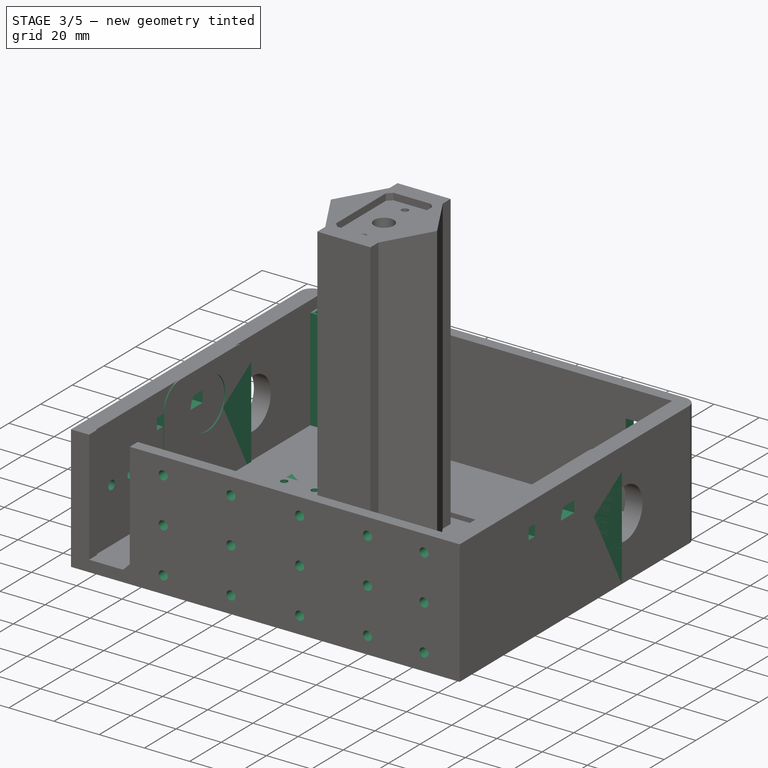
[diagram: stage 3 of 5 — iso view after this stage's code; geometry added in this stage tinted green]
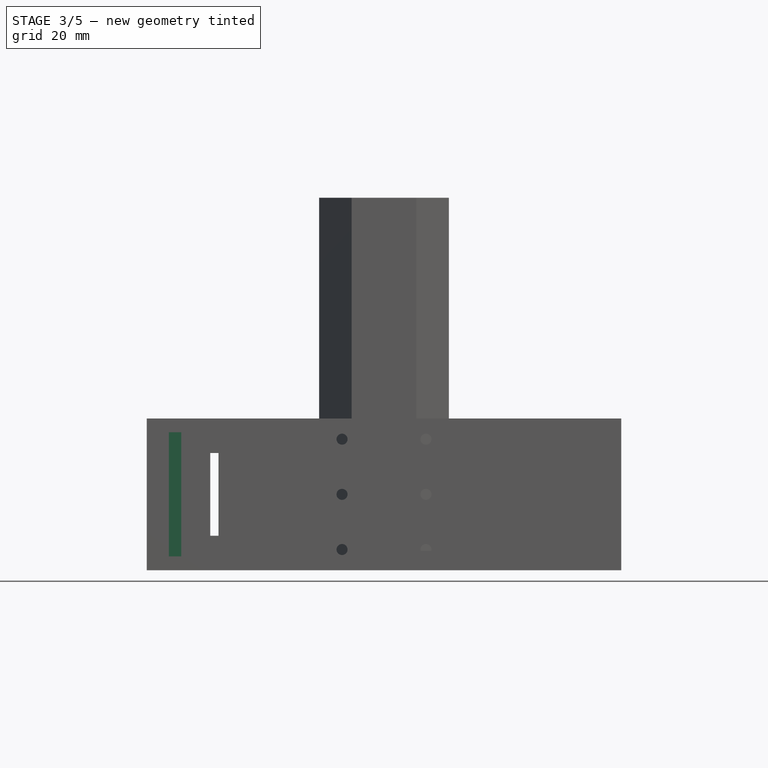
[diagram: stage 3 of 5 — front view after this stage's code; geometry added in this stage tinted green]
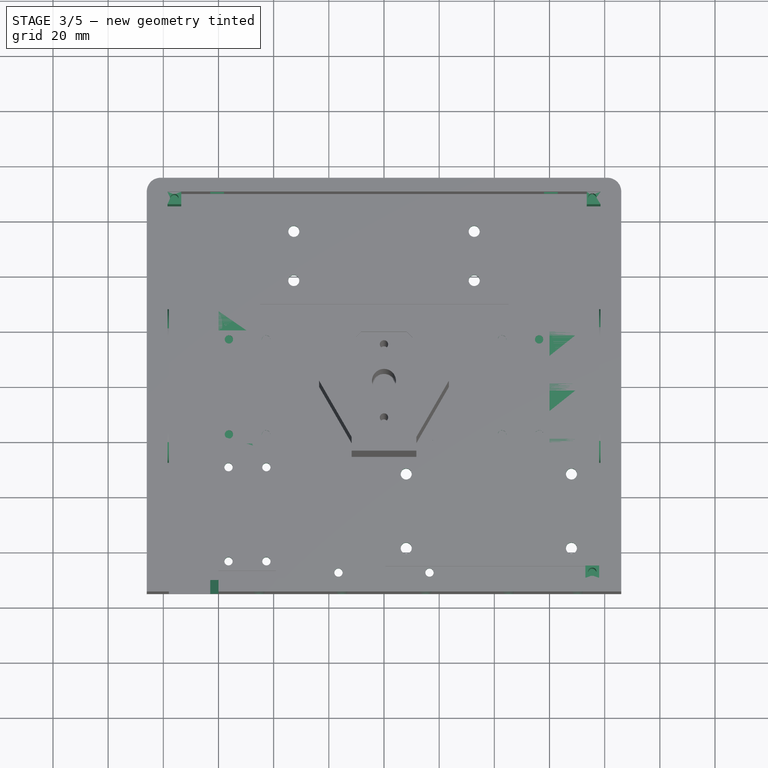
[diagram: stage 3 of 5 — top view after this stage's code; geometry added in this stage tinted green]
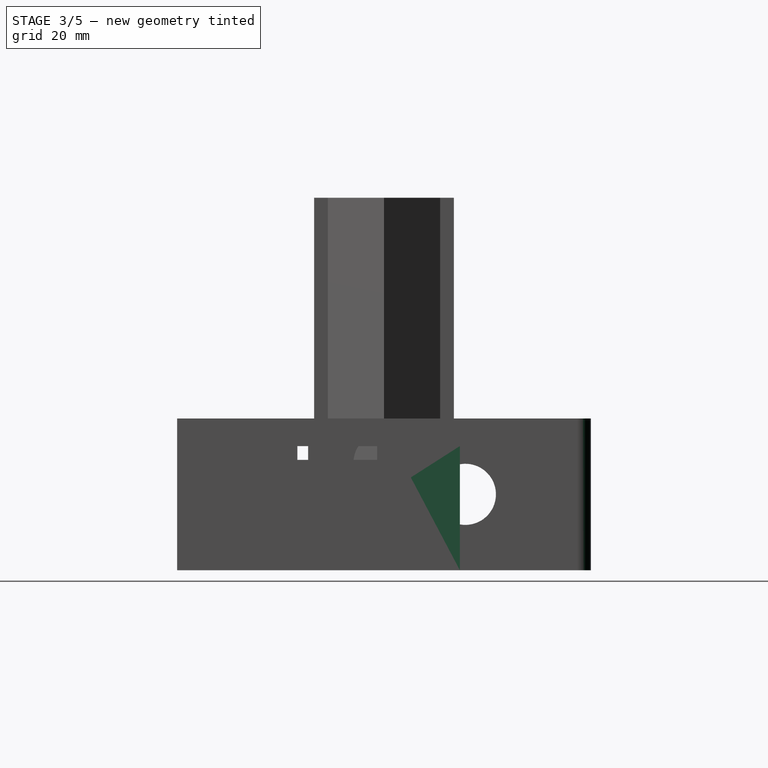
[diagram: stage 3 of 5 — right view after this stage's code; geometry added in this stage tinted green]
FEATURE [PartDesign::Body] Body004  label="MotorSupport"
  AllowCompound = false
  Group = -> [Sketch014,Pad004,Sketch015,Pocket010,Sketch017,Pocket011]
  Origin = -> Origin004
  Placement = pos=(-50,1.12e-14,8) rot=(0,0,1;4.71239rad)
  Tip = -> Pocket011
FEATURE [PartDesign::Pad] Pad010  label="ComponentBasePad001"
  BaseFeature = -> Pad003
  Direction = (0,0,1)
  Length = 2
  Length2 = 10
  Profile = -> Sketch013
  ReferenceAxis = -> Sketch013 [N_Axis]
  Refine = true
  Suppressed = false
  Type = 0
FEATURE [PartDesign::Body] Body013  label="ControllerBase"
  AllowCompound = false
  Group = -> [Sketch035,Pad013,Sketch036,Pocket023,Sketch037,Pocket024]
  Origin = -> Origin013
  Placement = pos=(0,0,49) rot=(0,0,1;0rad)
  Tip = -> Pocket024
FEATURE [Sketcher::SketchObject] Sketch038
  ArcFitTolerance = 1e-06
  AttachmentSupport = -> [Pad010]
  ExternalGeometry = -> [Pad010]
  FullyConstrained = true
  MakeInternals = false
  MapMode = 5
  Placement = pos=(0,0,7) rot=(0,0,1;0rad)
  sketch-geometry (24):
    g0: Circle CenterX=-56.225 CenterY=17.2214 CenterZ=0 NormalX=0 NormalY=0 NormalZ=1 AngleXU=0 Radius=1.5
    g1: Circle CenterX=-42.775 CenterY=17.2214 CenterZ=0 NormalX=0 NormalY=0 NormalZ=1 AngleXU=0 Radius=1.5
    g2: GeomPoint [constr] X=-55 Y=20.5 Z=0
    g3: Circle CenterX=-56.225 CenterY=-17.2214 CenterZ=0 NormalX=0 NormalY=0 NormalZ=1 AngleXU=0 Radius=1.5
    g4: Circle CenterX=-42.775 CenterY=-17.2214 CenterZ=0 NormalX=0 NormalY=0 NormalZ=1 AngleXU=0 Radius=1.5
    g5: Circle CenterX=-56.369 CenterY=-29.0896 CenterZ=0 NormalX=0 NormalY=0 NormalZ=1 AngleXU=0 Radius=1.5
    g6: Circle CenterX=-42.631 CenterY=-29.0896 CenterZ=0 NormalX=0 NormalY=0 NormalZ=1 AngleXU=0 Radius=1.5
    g7: Circle CenterX=-56.369 CenterY=-63.2148 CenterZ=0 NormalX=0 NormalY=0 NormalZ=1 AngleXU=0 Radius=1.5
    g8: Circle CenterX=-42.631 CenterY=-63.2148 CenterZ=0 NormalX=0 NormalY=0 NormalZ=1 AngleXU=0 Radius=1.5
    g9: Circle CenterX=-32.7 CenterY=56.4145 CenterZ=0 NormalX=0 NormalY=0 NormalZ=1 AngleXU=0 Radius=2
    g10: Circle CenterX=-32.7 CenterY=38.5855 CenterZ=0 NormalX=0 NormalY=0 NormalZ=1 AngleXU=0 Radius=2
    g11: GeomPoint X=-30 Y=65 Z=0
    g12: Circle CenterX=32.7 CenterY=56.4145 CenterZ=0 NormalX=0 NormalY=0 NormalZ=1 AngleXU=0 Radius=2
    g13: Circle CenterX=32.7 CenterY=38.5855 CenterZ=0 NormalX=0 NormalY=0 NormalZ=1 AngleXU=0 Radius=2
    g14: Circle CenterX=8.05 CenterY=-31.5572 CenterZ=0 NormalX=0 NormalY=0 NormalZ=1 AngleXU=0 Radius=2
    g15: Circle CenterX=8.05 CenterY=-58.4428 CenterZ=0 NormalX=0 NormalY=0 NormalZ=1 AngleXU=0 Radius=2
    g16: Circle CenterX=67.95 CenterY=-31.5572 CenterZ=0 NormalX=0 NormalY=0 NormalZ=1 AngleXU=0 Radius=2
    g17: Circle CenterX=67.95 CenterY=-58.4428 CenterZ=0 NormalX=0 NormalY=0 NormalZ=1 AngleXU=0 Radius=2
    g18: GeomPoint [constr] X=10.5 Y=-25 Z=0
    g19: GeomPoint [constr] X=-55 Y=-25.6522 Z=0
    g20: Circle CenterX=56.225 CenterY=17.2214 CenterZ=0 NormalX=0 NormalY=0 NormalZ=1 AngleXU=0 Radius=1.5
    g21: Circle CenterX=42.775 CenterY=17.2214 CenterZ=0 NormalX=0 NormalY=0 NormalZ=1 AngleXU=0 Radius=1.5
    g22: Circle CenterX=42.775 CenterY=-17.2214 CenterZ=0 NormalX=0 NormalY=0 NormalZ=1 AngleXU=0 Radius=1.5
    g23: Circle CenterX=56.225 CenterY=-17.2214 CenterZ=0 NormalX=0 NormalY=0 NormalZ=1 AngleXU=0 Radius=1.5
  constraints (62):
    c: Equal(g0,g1)
    c: Diameter(g0) = 3
    c: Horizontal(g0,g1)
    c: Distance(g0,g-5) = 5
    c: Distance(g1,g-4) = 5
    c: PointOnObject(g2,g-3)
    c: Distance(g2,g-5) = 5
    c: Distance(g0,g2) = 3.5
    c: Equal(g4,g3)
    c: Diameter(g4) = 3
    c: Horizontal(g3,g4)
    c: Distance(g3,g-6) = 5
    c: Distance(g4,g-6) = 5
    c: Vertical(g3,g0)
    c: Diameter(g6) = 3
    c: Distance(g6,g-8) = 5
    c: Distance(g5,g-9) = 5
    c: Diameter(g8) = 3
    c: Distance(g7,g-10) = 5
    c: Distance(g8,g-10) = 5
    c: Equal(g10,g9)
    c: Diameter(g10) = 4
    c: Distance(g10,g-13) = 15
    c: Distance(g9,g-12) = 15
    c: Vertical(g9,g10)
    c: PointOnObject(g11,g-11)
    c: Distance(g11,g-12) = 15
    c: Distance(g9,g11) = 9
    c: Equal(g13,g12)
    c: Diameter(g13) = 4
    c: Block(g13)
    c: Block(g12)
    c: Equal(g14,g15)
    c: Equal(g14,g17)
    c: Equal(g14,g16)
    c: Diameter(g14) = 4
    c: Distance(g14,g-16) = 10
    c: Distance(g15,g-17) = 10
    c: Vertical(g15,g14)
    c: PointOnObject(g18,g-15)
    c: Distance(g18,g-16) = 10
    c: Distance(g14,g18) = 7
    c: Vertical(g17,g16)
    c: Distance(g16,g-18) = 10
    c: Distance(g17,g-18) = 10
    c: Horizontal(g14,g16)
    c: Diameter(g5) = 3
    c: Diameter(g7) = 3
    c: Horizontal(g5,g6)
    c: Horizontal(g7,g8)
    c: Vertical(g7,g5)
    c: PointOnObject(g19,g-7)
    c: Distance(g19,g-9) = 5
    c: Distance(g5,g19) = 3.7
    c: Equal(g20,g21)
    c: Diameter(g20) = 3
    c: Equal(g22,g23)
    c: Diameter(g22) = 3
    c: Block(g21)
    c: Block(g20)
    c: Block(g22)
    c: Block(g23)
FEATURE [PartDesign::Pocket] Pocket025  label="ComponentBaseScrewPocket"
  BaseFeature = -> Pad010
  Direction = (0,0,-1)
  Length = 5
  Length2 = 5
  Profile = -> Sketch038
  ReferenceAxis = -> Sketch038 [N_Axis]
  Refine = true
  Suppressed = false
  Type = 1
FEATURE [Sketcher::SketchObject] Sketch039
  ArcFitTolerance = 1e-06
  AttachmentSupport = -> [Pocket025]
  ExternalGeometry = -> [Pocket025]
  FullyConstrained = true
  MakeInternals = false
  MapMode = 5
  Placement = pos=(0,-75,0) rot=(1,0,0;1.5708rad)
  sketch-geometry (18):
    g0: Circle CenterX=-45.2098 CenterY=47.5 CenterZ=0 NormalX=0 NormalY=0 NormalZ=1 AngleXU=0 Radius=2
    g1: Circle CenterX=-45.2098 CenterY=27.5 CenterZ=0 NormalX=0 NormalY=0 NormalZ=1 AngleXU=0 Radius=2
    g2: Circle CenterX=-45.2098 CenterY=7.5 CenterZ=0 NormalX=0 NormalY=0 NormalZ=1 AngleXU=0 Radius=2
    g3: GeomPoint [constr] X=-45.2098 Y=55 Z=0
    g4: GeomPoint [constr] X=-45.2098 Y=0 Z=0
    g5: GeomPoint [constr] X=-60 Y=30 Z=0
    g6: Circle CenterX=-15.2098 CenterY=47.5 CenterZ=0 NormalX=0 NormalY=0 NormalZ=1 AngleXU=0 Radius=2
    g7: Circle CenterX=-15.2098 CenterY=27.5 CenterZ=0 NormalX=0 NormalY=0 NormalZ=1 AngleXU=0 Radius=2
    g8: Circle CenterX=-15.2098 CenterY=7.5 CenterZ=0 NormalX=0 NormalY=0 NormalZ=1 AngleXU=0 Radius=2
    g9: Circle CenterX=45.2098 CenterY=47.5 CenterZ=0 NormalX=0 NormalY=0 NormalZ=1 AngleXU=0 Radius=2
    g10: Circle CenterX=45.2098 CenterY=27.5 CenterZ=0 NormalX=0 NormalY=0 NormalZ=1 AngleXU=0 Radius=2
    g11: Circle CenterX=45.2098 CenterY=7.5 CenterZ=0 NormalX=0 NormalY=0 NormalZ=1 AngleXU=0 Radius=2
    g12: Circle CenterX=15.2098 CenterY=47.5 CenterZ=0 NormalX=0 NormalY=0 NormalZ=1 AngleXU=0 Radius=2
    g13: Circle CenterX=15.2098 CenterY=27.5 CenterZ=0 NormalX=0 NormalY=0 NormalZ=1 AngleXU=0 Radius=2
    g14: Circle CenterX=15.2098 CenterY=7.5 CenterZ=0 NormalX=0 NormalY=0 NormalZ=1 AngleXU=0 Radius=2
    g15: Circle CenterX=70.2098 CenterY=47.5 CenterZ=0 NormalX=0 NormalY=0 NormalZ=1 AngleXU=0 Radius=2
    g16: Circle CenterX=70.2098 CenterY=27.5 CenterZ=0 NormalX=0 NormalY=0 NormalZ=1 AngleXU=0 Radius=2
    g17: Circle CenterX=70.2098 CenterY=7.5 CenterZ=0 NormalX=0 NormalY=0 NormalZ=1 AngleXU=0 Radius=2
  constraints (46):
    c: Equal(g0,g1)
    c: Equal(g0,g2)
    c: Diameter(g0) = 4
    c: Vertical(g2,g1)
    c: Vertical(g1,g0)
    c: Distance(g0,g1) = 20
    c: Distance(g2,g1) = 20
    c: PointOnObject(g3,g-3)
    c: PointOnObject(g4,g-5)
    c: Vertical(g4,g3)
    c: Symmetric(g3,g4,g1)
    c: Symmetric(g-6,g-6,g5)
    c: Distance(g5,g1) = 15
    c: Equal(g8,g7)
    c: Equal(g8,g6)
    c: Diameter(g8) = 4
    c: Vertical(g6,g7)
    c: Vertical(g7,g8)
    c: Horizontal(g1,g7)
    c: Horizontal(g6,g0)
    c: Horizontal(g8,g2)
    c: Distance(g7,g1) = 30
    c: Equal(g9,g10)
    c: Equal(g9,g11)
    c: Diameter(g9) = 4
    c: Distance(g9,g10) = 20
    c: Distance(g11,g10) = 20
    c: Equal(g14,g13)
    c: Equal(g14,g12)
    c: Diameter(g14) = 4
    c: Distance(g13,g10) = 30
    c: Block(g12)
    c: Block(g9)
    c: Block(g10)
    c: Block(g13)
    c: Block(g14)
    c: Block(g11)
    c: Equal(g17,g16)
    c: Equal(g17,g15)
    c: Diameter(g17) = 4
    c: Vertical(g17,g16)
    c: Vertical(g16,g15)
    c: Horizontal(g15,g9)
    c: Horizontal(g16,g10)
    c: Horizontal(g17,g11)
    c: Distance(g16,g10) = 25
FEATURE [PartDesign::Pocket] Pocket026  label="FrontScrewPocket"
  BaseFeature = -> Pocket025
  Direction = (0,1,-2e-16)
  Length = 5
  Length2 = 5
  Profile = -> Sketch039
  ReferenceAxis = -> Sketch039 [N_Axis]
  Refine = true
  Suppressed = false
  Type = 0
FEATURE [Sketcher::SketchObject] Sketch040
  ArcFitTolerance = 1e-06
  AttachmentSupport = -> [Pocket026]
  ExternalGeometry = -> [Pocket026]
  FullyConstrained = true
  MakeInternals = false
  MapMode = 5
  Placement = pos=(0,75,0) rot=(0,0.707107,0.707107;3.14159rad)
  sketch-geometry (14):
    g0: LineSegment [constr] StartX=-60.5 StartY=55 StartZ=0 EndX=-60.5 EndY=0 EndZ=0
    g1: GeomPoint X=-60.5 Y=27.5 Z=0
    g2: LineSegment StartX=-63 StartY=42.5 StartZ=0 EndX=-63 EndY=12.5 EndZ=0
    g3: LineSegment StartX=-63 StartY=12.5 StartZ=0 EndX=-58 EndY=12.5 EndZ=0
    g4: LineSegment StartX=-58 StartY=12.5 StartZ=0 EndX=-58 EndY=42.5 EndZ=0
    g5: LineSegment StartX=-58 StartY=42.5 StartZ=0 EndX=-63 EndY=42.5 EndZ=0
    g6: GeomPoint [constr] X=-60.5 Y=27.5 Z=0
    g7: GeomPoint [constr] X=-86 Y=27.5 Z=0
    g8: GeomPoint X=60.5 Y=27.5 Z=0
    g9: LineSegment StartX=63 StartY=42.5 StartZ=0 EndX=63 EndY=12.5 EndZ=0
    g10: LineSegment StartX=63 StartY=12.5 StartZ=0 EndX=58 EndY=12.5 EndZ=0
    g11: LineSegment StartX=58 StartY=12.5 StartZ=0 EndX=58 EndY=42.5 EndZ=0
    g12: LineSegment StartX=58 StartY=42.5 StartZ=0 EndX=63 EndY=42.5 EndZ=0
    g13: GeomPoint [constr] X=60.5 Y=27.5 Z=0
  constraints (30):
    c: PointOnObject(g0,g-3)
    c: PointOnObject(g0,g-4)
    c: Vertical(g0)
    c: Symmetric(g0,g0,g1)
    c: Coincident(g2,g3)
    c: Coincident(g3,g4)
    c: Coincident(g4,g5)
    c: Coincident(g5,g2)
    c: Vertical(g2)
    c: Vertical(g4)
    c: Horizontal(g3)
    c: Horizontal(g5)
    c: Symmetric(g4,g2,g6)
    c: Coincident(g6,g1)
    c: DistanceX(g5,g5) = 5
    c: DistanceY(g2,g2) = 30
    c: Symmetric(g-5,g-5,g7)
    c: Distance(g7,g2) = 23
    c: Coincident(g9,g10)
    c: Coincident(g10,g11)
    c: Coincident(g11,g12)
    c: Coincident(g12,g9)
    c: Vertical(g9)
    c: Vertical(g11)
    c: Horizontal(g10)
    c: Horizontal(g12)
    c: Symmetric(g11,g9,g13)
    c: Coincident(g13,g8)
    c: Block(g11)
    c: Block(g10)
FEATURE [PartDesign::Pocket] Pocket027  label="VentilationPocket"
  BaseFeature = -> Pocket026
  Direction = (0,-1,2e-16)
  Length = 5
  Length2 = 5
  Profile = -> Sketch040
  ReferenceAxis = -> Sketch040 [N_Axis]
  Refine = true
  Suppressed = false
  Type = 0
FEATURE [Sketcher::SketchObject] Sketch041
  ArcFitTolerance = 1e-06
  AttachmentSupport = -> [XY_Plane014]
  FullyConstrained = true
  MakeInternals = false
  MapMode = 5
  sketch-geometry (5):
    g0: LineSegment StartX=-86 StartY=27.5 StartZ=0 EndX=-86 EndY=-27.5 EndZ=0
    g1: LineSegment StartX=-86 StartY=-27.5 StartZ=0 EndX=86 EndY=-27.5 EndZ=0
    g2: LineSegment StartX=86 StartY=-27.5 StartZ=0 EndX=86 EndY=27.5 EndZ=0
    g3: LineSegment StartX=86 StartY=27.5 StartZ=0 EndX=-86 EndY=27.5 EndZ=0
    g4: GeomPoint [constr] X=0 Y=0 Z=0
  constraints (12):
    c: Coincident(g0,g1)
    c: Coincident(g1,g2)
    c: Coincident(g2,g3)
    c: Coincident(g3,g0)
    c: Vertical(g0)
    c: Vertical(g2)
    c: Horizontal(g1)
    c: Horizontal(g3)
    c: Symmetric(g2,g0,g4)
    c: Coincident(g4,g-1)
    c: DistanceX(g3,g3) = 172
    c: DistanceY(g0,g0) = 55
FEATURE [PartDesign::Pad] Pad014  label="BasePad002"
  Direction = (0,0,1)
  Length = 5
  Length2 = 10
  Profile = -> Sketch041
  ReferenceAxis = -> Sketch041 [N_Axis]
  Refine = true
  Suppressed = false
  Type = 0
FEATURE [Sketcher::SketchObject] Sketch042
  ArcFitTolerance = 1e-06
  AttachmentSupport = -> [Pad014]
  ExternalGeometry = -> [Pad014]
  FullyConstrained = true
  MakeInternals = false
  MapMode = 5
  Placement = pos=(0,0,5) rot=(0,0,1;0rad)
  sketch-geometry (5):
    g0: GeomPoint [constr] X=-86 Y=0 Z=0
    g1: LineSegment StartX=-78 StartY=27.5 StartZ=0 EndX=-78 EndY=-17.5 EndZ=0
    g2: LineSegment StartX=-78 StartY=-17.5 StartZ=0 EndX=-60 EndY=-17.5 EndZ=0
    g3: LineSegment StartX=-60 StartY=-17.5 StartZ=0 EndX=-60 EndY=27.5 EndZ=0
    g4: LineSegment StartX=-60 StartY=27.5 StartZ=0 EndX=-78 EndY=27.5 EndZ=0
  constraints (13):
    c: Symmetric(g-4,g-4,g0)
    c: Coincident(g1,g2)
    c: Coincident(g2,g3)
    c: Coincident(g3,g4)
    c: Coincident(g4,g1)
    c: Vertical(g1)
    c: Vertical(g3)
    c: Horizontal(g2)
    c: Horizontal(g4)
    c: PointOnObject(g1,g-3)
    c: DistanceX(g4,g4) = 18
    c: DistanceY(g3,g3) = 45
    c: Distance(g0,g1) = 8
FEATURE [PartDesign::Pocket] Pocket028  label="MotorBeltPocket"
  BaseFeature = -> Pad014
  Direction = (0,0,-1)
  Length = 5
  Length2 = 5
  Profile = -> Sketch042
  ReferenceAxis = -> Sketch042 [N_Axis]
  Refine = true
  Suppressed = false
  Type = 1
FEATURE [Sketcher::SketchObject] Sketch043
  ArcFitTolerance = 1e-06
  AttachmentSupport = -> [Pocket028]
  ExternalGeometry = -> [Pocket028]
  FullyConstrained = true
  MakeInternals = false
  MapMode = 5
  Placement = pos=(0,0,5) rot=(0,0,1;0rad)
  sketch-geometry (8):
    g0: LineSegment StartX=-86 StartY=27.5 StartZ=0 EndX=-86 EndY=-27.5 EndZ=0
    g1: LineSegment StartX=-86 StartY=-27.5 StartZ=0 EndX=-78 EndY=-27.5 EndZ=0
    g2: LineSegment StartX=-78 StartY=-27.5 StartZ=0 EndX=-78 EndY=27.5 EndZ=0
    g3: LineSegment StartX=-78 StartY=27.5 StartZ=0 EndX=-86 EndY=27.5 EndZ=0
    g4: LineSegment StartX=86 StartY=27.5 StartZ=0 EndX=78 EndY=27.5 EndZ=0
    g5: LineSegment StartX=78 StartY=27.5 StartZ=0 EndX=78 EndY=-27.5 EndZ=0
    g6: LineSegment StartX=78 StartY=-27.5 StartZ=0 EndX=86 EndY=-27.5 EndZ=0
    g7: LineSegment StartX=86 StartY=-27.5 StartZ=0 EndX=86 EndY=27.5 EndZ=0
  constraints (22):
    c: Coincident(g0,g1)
    c: Coincident(g1,g2)
    c: Coincident(g2,g3)
    c: Coincident(g3,g0)
    c: Vertical(g0)
    c: Vertical(g2)
    c: Horizontal(g1)
    c: Horizontal(g3)
    c: Coincident(g0,g-4)
    c: PointOnObject(g1,g-6)
    c: DistanceX(g3,g3) = 8
    c: Coincident(g4,g5)
    c: Coincident(g5,g6)
    c: Coincident(g6,g7)
    c: Coincident(g7,g4)
    c: Horizontal(g4)
    c: Horizontal(g6)
    c: Vertical(g5)
    c: Vertical(g7)
    c: Coincident(g4,g-8)
    c: PointOnObject(g5,g-6)
    c: DistanceX(g4,g4) = 8
FEATURE [PartDesign::Pad] Pad015  label="DrumBasePad"
  BaseFeature = -> Pocket028
  Direction = (0,0,1)
  Length = 50
  Length2 = 10
  Profile = -> Sketch043
  ReferenceAxis = -> Sketch043 [N_Axis]
  Refine = true
  Suppressed = false
  Type = 0
FEATURE [Sketcher::SketchObject] Sketch044
  ArcFitTolerance = 1e-06
  AttachmentSupport = -> [Pad015]
  ExternalGeometry = -> [Pad015]
  FullyConstrained = true
  MakeInternals = false
  MapMode = 5
  Placement = pos=(0,0,5) rot=(0,0,1;0rad)
  sketch-geometry (18):
    g0: Circle CenterX=-45.8579 CenterY=20 CenterZ=0 NormalX=0 NormalY=0 NormalZ=1 AngleXU=0 Radius=2
    g1: Circle CenterX=-45.8579 CenterY=-1.6e-15 CenterZ=0 NormalX=0 NormalY=0 NormalZ=1 AngleXU=0 Radius=2
    g2: Circle CenterX=-45.8579 CenterY=-20 CenterZ=0 NormalX=0 NormalY=0 NormalZ=1 AngleXU=0 Radius=2
    g3: GeomPoint [constr] X=-60 Y=5 Z=0
    g4: GeomPoint [constr] X=-45.8579 Y=27.5 Z=0
    g5: GeomPoint [constr] X=-45.8579 Y=-27.5 Z=0
    g6: Circle CenterX=-15.8579 CenterY=20 CenterZ=0 NormalX=0 NormalY=0 NormalZ=1 AngleXU=0 Radius=2
    g7: Circle CenterX=-15.8579 CenterY=-1.6e-15 CenterZ=0 NormalX=0 NormalY=0 NormalZ=1 AngleXU=0 Radius=2
    g8: Circle CenterX=-15.8579 CenterY=-20 CenterZ=0 NormalX=0 NormalY=0 NormalZ=1 AngleXU=0 Radius=2
    g9: Circle CenterX=45.8579 CenterY=20 CenterZ=0 NormalX=0 NormalY=0 NormalZ=1 AngleXU=0 Radius=2
    g10: Circle CenterX=45.8579 CenterY=-1.6e-15 CenterZ=0 NormalX=0 NormalY=0 NormalZ=1 AngleXU=0 Radius=2
    g11: Circle CenterX=45.8579 CenterY=-20 CenterZ=0 NormalX=0 NormalY=0 NormalZ=1 AngleXU=0 Radius=2
    g12: Circle CenterX=15.8579 CenterY=20 CenterZ=0 NormalX=0 NormalY=0 NormalZ=1 AngleXU=0 Radius=2
    g13: Circle CenterX=15.8579 CenterY=-1.6e-15 CenterZ=0 NormalX=0 NormalY=0 NormalZ=1 AngleXU=0 Radius=2
    g14: Circle CenterX=15.8579 CenterY=-20 CenterZ=0 NormalX=0 NormalY=0 NormalZ=1 AngleXU=0 Radius=2
    g15: Circle CenterX=70.8579 CenterY=20 CenterZ=0 NormalX=0 NormalY=0 NormalZ=1 AngleXU=0 Radius=2
    g16: Circle CenterX=70.8579 CenterY=-1.6e-15 CenterZ=0 NormalX=0 NormalY=0 NormalZ=1 AngleXU=0 Radius=2
    g17: Circle CenterX=70.8579 CenterY=-20 CenterZ=0 NormalX=0 NormalY=0 NormalZ=1 AngleXU=0 Radius=2
  constraints (46):
    c: Equal(g2,g1)
    c: Equal(g2,g0)
    c: Diameter(g2) = 4
    c: Distance(g0,g1) = 20
    c: Distance(g1,g2) = 20
    c: Vertical(g2,g1)
    c: Vertical(g1,g0)
    c: Symmetric(g-4,g-4,g3)
    c: PointOnObject(g4,g-3)
    c: PointOnObject(g5,g-6)
    c: Vertical(g4,g5)
    c: Symmetric(g5,g4,g1)
    c: Distance(g3,g1) = 15
    c: Equal(g8,g7)
    c: Equal(g8,g6)
    c: Diameter(g8) = 4
    c: Vertical(g6,g7)
    c: Vertical(g7,g8)
    c: Distance(g6,g0) = 30
    c: Horizontal(g6,g0)
    c: Horizontal(g7,g1)
    c: Horizontal(g8,g2)
    c: Equal(g11,g10)
    c: Equal(g11,g9)
    c: Diameter(g11) = 4
    c: Distance(g9,g10) = 20
    c: Distance(g10,g11) = 20
    c: Equal(g14,g13)
    c: Equal(g14,g12)
    c: Diameter(g14) = 4
    c: Distance(g12,g9) = 30
    c: Block(g12)
    c: Block(g9)
    c: Block(g10)
    c: Block(g13)
    c: Block(g14)
    c: Block(g11)
    c: Equal(g17,g16)
    c: Equal(g17,g15)
    c: Diameter(g17) = 4
    c: Vertical(g17,g16)
    c: Vertical(g16,g15)
    c: Horizontal(g15,g9)
    c: Horizontal(g16,g10)
    c: Horizontal(g17,g11)
    c: Distance(g16,g10) = 25
FEATURE [PartDesign::Pocket] Pocket029  label="ScrewPocket006"
  BaseFeature = -> Pad015
  Direction = (0,0,-1)
  Length = 5
  Length2 = 5
  Profile = -> Sketch044
  ReferenceAxis = -> Sketch044 [N_Axis]
  Refine = true
  Suppressed = false
  Type = 1
FEATURE [Sketcher::SketchObject] Sketch045
  ArcFitTolerance = 1e-06
  AttachmentSupport = -> [Pocket029]
  ExternalGeometry = -> [Pocket029]
  FullyConstrained = true
  MakeInternals = false
  MapMode = 5
  Placement = pos=(-86,0,0) rot=(0.57735,-0.57735,-0.57735;2.0944rad)
  sketch-geometry (2):
    g0: Circle CenterX=0 CenterY=38.925 CenterZ=0 NormalX=0 NormalY=0 NormalZ=1 AngleXU=0 Radius=11.075
    g1: GeomPoint [constr] X=0 Y=55 Z=0
  constraints (4):
    c: PointOnObject(g0,g-2)
    c: Diameter(g0) = 22.15
    c: Symmetric(g-3,g-3,g1)
    c: Distance(g1,g0) = 5
FEATURE [PartDesign::Pocket] Pocket030  label="BearingPocket"
  BaseFeature = -> Pocket029
  Direction = (1,0,0)
  Length = 5
  Length2 = 5
  Profile = -> Sketch045
  ReferenceAxis = -> Sketch045 [N_Axis]
  Refine = true
  Suppressed = false
  Type = 1
FEATURE [PartDesign::Fillet] Fillet004
  Base = -> Pocket030 [Edge78]
  BaseFeature = -> Pocket030
  Radius = 10
  Refine = true
  SupportTransform = false
  Suppressed = false
  UseAllEdges = false
FEATURE [PartDesign::Fillet] Fillet005
  Base = -> Fillet004 [Edge36]
  BaseFeature = -> Fillet004
  Radius = 10
  Refine = true
  SupportTransform = false
  Suppressed = false
  UseAllEdges = false
FEATURE [PartDesign::Fillet] Fillet006
  Base = -> Fillet005 [Edge70]
  BaseFeature = -> Fillet005
  Radius = 10
  Refine = true
  SupportTransform = false
  Suppressed = false
  UseAllEdges = false
FEATURE [PartDesign::Fillet] Fillet007
  Base = -> Fillet006 [Edge9]
  BaseFeature = -> Fillet006
  Radius = 10
  Refine = true
  SupportTransform = false
  Suppressed = false
  UseAllEdges = false
FEATURE [Sketcher::SketchObject] Sketch058
  ArcFitTolerance = 1e-06
  AttachmentSupport = -> [Pocket027]
  ExternalGeometry = -> [Pocket027]
  FullyConstrained = true
  MakeInternals = false
  MapMode = 5
  Placement = pos=(0,0,5) rot=(0,0,1;0rad)
  sketch-geometry (12):
    g0: LineSegment StartX=-78.5 StartY=70 StartZ=0 EndX=-78.5 EndY=65.5 EndZ=0
    g1: LineSegment StartX=-78.5 StartY=65.5 StartZ=0 EndX=-73.5 EndY=65.5 EndZ=0
    g2: LineSegment StartX=-73.5 StartY=65.5 StartZ=0 EndX=-73.5 EndY=70 EndZ=0
    g3: LineSegment StartX=-73.5 StartY=70 StartZ=0 EndX=-78.5 EndY=70 EndZ=0
    g4: LineSegment StartX=78.5 StartY=70 StartZ=0 EndX=73.5 EndY=70 EndZ=0
    g5: LineSegment StartX=73.5 StartY=70 StartZ=0 EndX=73.5 EndY=65.5 EndZ=0
    g6: LineSegment StartX=73.5 StartY=65.5 StartZ=0 EndX=78.5 EndY=65.5 EndZ=0
    g7: LineSegment StartX=78.5 StartY=65.5 StartZ=0 EndX=78.5 EndY=70 EndZ=0
    g8: LineSegment StartX=78 StartY=-70 StartZ=0 EndX=78 EndY=-65.5 EndZ=0
    g9: LineSegment StartX=78 StartY=-65.5 StartZ=0 EndX=73 EndY=-65.5 EndZ=0
    g10: LineSegment StartX=73 StartY=-65.5 StartZ=0 EndX=73 EndY=-70 EndZ=0
    g11: LineSegment StartX=73 StartY=-70 StartZ=0 EndX=78 EndY=-70 EndZ=0
  constraints (33):
    c: Coincident(g0,g1)
    c: Coincident(g1,g2)
    c: Coincident(g2,g3)
    c: Coincident(g3,g0)
    c: Vertical(g0)
    c: Vertical(g2)
    c: Horizontal(g1)
    c: Horizontal(g3)
    c: Coincident(g0,g-4)
    c: DistanceX(g3,g3) = 5
    c: DistanceY(g2,g2) = 4.5
    c: Coincident(g4,g5)
    c: Coincident(g5,g6)
    c: Coincident(g6,g7)
    c: Coincident(g7,g4)
    c: Horizontal(g4)
    c: Horizontal(g6)
    c: Vertical(g5)
    c: Vertical(g7)
    c: Coincident(g4,g-5)
    c: DistanceX(g4,g4) = 5
    c: DistanceY(g5,g5) = 4.5
    c: Coincident(g8,g9)
    c: Coincident(g9,g10)
    c: Coincident(g10,g11)
    c: Coincident(g11,g8)
    c: Vertical(g8)
    c: Vertical(g10)
    c: Horizontal(g9)
    c: Horizontal(g11)
    c: Coincident(g8,g-6)
    c: DistanceX(g9,g9) = 5
    c: DistanceY(g10,g10) = 4.5
FEATURE [PartDesign::Pad] Pad022  label="HoodScrewPad"
  BaseFeature = -> Pocket027
  Direction = (0,0,1)
  Length = 45
  Length2 = 10
  Profile = -> Sketch058
  ReferenceAxis = -> Sketch058 [N_Axis]
  Refine = true
  Suppressed = false
  Type = 0
FEATURE [Sketcher::SketchObject] Sketch059
  ArcFitTolerance = 1e-06
  AttachmentSupport = -> [Pad022]
  ExternalGeometry = -> [Pad022]
  FullyConstrained = true
  MakeInternals = false
  MapMode = 5
  Placement = pos=(0,0,50) rot=(0,0,1;0rad)
  sketch-geometry (5):
    g0: LineSegment [constr] StartX=-78.5 StartY=70 StartZ=0 EndX=-73.5 EndY=65.5 EndZ=0
    g1: LineSegment [constr] StartX=-78.5 StartY=65.5 StartZ=0 EndX=-73.5 EndY=70 EndZ=0
    g2: GeomPoint X=-76 Y=67.75 Z=0
    g3: Circle CenterX=-76 CenterY=67.75 CenterZ=0 NormalX=0 NormalY=0 NormalZ=1 AngleXU=0 Radius=1.5
    g4: Circle CenterX=75.5 CenterY=68 CenterZ=0 NormalX=0 NormalY=0 NormalZ=1 AngleXU=0 Radius=1.5
  constraints (9):
    c: Coincident(g0,g-4)
    c: Coincident(g0,g-6)
    c: Coincident(g1,g-6)
    c: Coincident(g1,g-5)
    c: Symmetric(g0,g0,g2)
    c: Coincident(g3,g2)
    c: Diameter(g3) = 3
    c: Diameter(g4) = 3
    c: Block(g4)
FEATURE [PartDesign::Pocket] Pocket039  label="HoodScrewPocket"
  BaseFeature = -> Pad022
  Direction = (0,0,-1)
  Length = 25
  Length2 = 5
  Profile = -> Sketch059
  ReferenceAxis = -> Sketch059 [N_Axis]
  Refine = true
  Suppressed = false
  Type = 0
FEATURE [Sketcher::SketchObject] Sketch060
  ArcFitTolerance = 1e-06
  AttachmentSupport = -> [Pocket039]
  ExternalGeometry = -> [Pocket039]
  FullyConstrained = true
  MakeInternals = false
  MapMode = 5
  Placement = pos=(0,0,50) rot=(0,0,1;0rad)
  sketch-geometry (4):
    g0: LineSegment [constr] StartX=73 StartY=-65.5 StartZ=0 EndX=78 EndY=-70 EndZ=0
    g1: LineSegment [constr] StartX=73 StartY=-70 StartZ=0 EndX=78 EndY=-65.5 EndZ=0
    g2: GeomPoint X=75.5 Y=-67.75 Z=0
    g3: Circle CenterX=75.5 CenterY=-67.75 CenterZ=0 NormalX=0 NormalY=0 NormalZ=1 AngleXU=0 Radius=1.5
  constraints (7):
    c: Coincident(g0,g-6)
    c: Coincident(g0,g-4)
    c: Coincident(g1,g-5)
    c: Coincident(g1,g-6)
    c: Symmetric(g1,g1,g2)
    c: Coincident(g3,g2)
    c: Diameter(g3) = 3
FEATURE [PartDesign::Pocket] Pocket040  label="HoodScrewPocket001"
  BaseFeature = -> Pocket039
  Direction = (0,0,-1)
  Length = 25
  Length2 = 5
  Profile = -> Sketch060
  ReferenceAxis = -> Sketch060 [N_Axis]
  Refine = true
  Suppressed = false
  Type = 0
FEATURE [PartDesign::Body] Body019  label="ChassiWeaponReinforcement"
  AllowCompound = false
  Group = -> [Sketch062,Pad023,Sketch063,Pocket042,Fillet008,Fillet009,Fillet010,Fillet011]
  Origin = -> Origin019
  Placement = pos=(-87,-70,29) rot=(-0.57735,0.57735,0.57735;4.18879rad)
  Tip = -> Fillet011
FEATURE [Sketcher::SketchObject] Sketch064
  ArcFitTolerance = 1e-06
  AttachmentSupport = -> [Pocket040]
  FullyConstrained = true
  MakeInternals = false
  MapMode = 5
  Placement = pos=(-86,0,0) rot=(0.57735,-0.57735,-0.57735;2.0944rad)
  sketch-geometry (2):
    g0: Circle CenterX=59.9991 CenterY=28.9975 CenterZ=0 NormalX=0 NormalY=0 NormalZ=1 AngleXU=0 Radius=2
    g1: Circle CenterX=47.9994 CenterY=28.9963 CenterZ=0 NormalX=0 NormalY=0 NormalZ=1 AngleXU=0 Radius=2
  constraints (4):
    c: Diameter(g0) = 4
    c: Diameter(g1) = 4
    c: Block(g1)
    c: Block(g0)
FEATURE [PartDesign::Pocket] Pocket043  label="ChassiWeaponReinforcementScrew"
  BaseFeature = -> Pocket040
  Direction = (1,0,0)
  Length = 8
  Length2 = 5
  Profile = -> Sketch064
  ReferenceAxis = -> Sketch064 [N_Axis]
  Refine = true
  Suppressed = false
  Type = 0
FEATURE [PartDesign::Body] Body014  label="WeaponBase"
  AllowCompound = false
  Group = -> [Sketch041,Pad014,Sketch042,Pocket028,Sketch043,Pad015,Sketch044,Pocket029,Sketch045,Pocket030,Fillet004,Fillet005,Fillet006,Fillet007,Chamfer007,Chamfer008,Sketch065,Pocket044]
  Origin = -> Origin014
  Placement = pos=(0,-75,28) rot=(1,0,0;1.5708rad)
  Tip = -> Pocket044
FEATURE [PartDesign::Fillet] Fillet012
  Base = -> Pocket043 [Edge8]
  BaseFeature = -> Pocket043
  Radius = 5
  Refine = true
  SupportTransform = false
  Suppressed = false
  UseAllEdges = false
FEATURE [PartDesign::Fillet] Fillet013
  Base = -> Fillet012 [Edge3]
  BaseFeature = -> Fillet012
  Radius = 5
  Refine = true
  SupportTransform = false
  Suppressed = false
  UseAllEdges = false
FEATURE [Sketcher::SketchObject] Sketch066
  ArcFitTolerance = 1e-06
  AttachmentSupport = -> [Fillet013]
  FullyConstrained = true
  MakeInternals = false
  MapMode = 5
  Placement = pos=(0,0,5) rot=(0,0,1;0rad)
  sketch-geometry (2):
    g0: Circle CenterX=-16.5 CenterY=-67.2655 CenterZ=0 NormalX=0 NormalY=0 NormalZ=1 AngleXU=0 Radius=1.5
    g1: Circle CenterX=16.5 CenterY=-67.2655 CenterZ=0 NormalX=0 NormalY=0 NormalZ=1 AngleXU=0 Radius=1.5
  constraints (5):
    c: Equal(g1,g0)
    c: Diameter(g1) = 3
    c: Distance(g1,g0) = 33
    c: Symmetric(g0,g1,g-2)
    c: Block(g0)
FEATURE [PartDesign::Pocket] Pocket045  label="SphericalWheelScrewPocket"
  BaseFeature = -> Fillet013
  Direction = (0,0,-1)
  Length = 5
  Length2 = 5
  Profile = -> Sketch066
  ReferenceAxis = -> Sketch066 [N_Axis]
  Refine = true
  Suppressed = false
  Type = 1
FEATURE [PartDesign::Chamfer] Chamfer009
  Angle = 45
  Base = -> Pocket045 [Edge141]
  BaseFeature = -> Pocket045
  ChamferType = 0
  FlipDirection = false
  Refine = true
  Size = 3
  Size2 = 1
  SupportTransform = false
  Suppressed = false
  UseAllEdges = false
FEATURE [Sketcher::SketchObject] Sketch067
  ArcFitTolerance = 1e-06
  AttachmentSupport = -> [Chamfer009]
  ExternalGeometry = -> [Chamfer009]
  FullyConstrained = true
  MakeInternals = false
  MapMode = 5
  Placement = pos=(-86,0,0) rot=(0.57735,-0.57735,-0.57735;2.0944rad)
  sketch-geometry (10):
    g0: LineSegment [constr] StartX=2.5 StartY=55 StartZ=0 EndX=2.5 EndY=0 EndZ=0
    g1: LineSegment StartX=2.5 StartY=45 StartZ=0 EndX=2.5 EndY=40 EndZ=0
    g2: LineSegment StartX=2.5 StartY=40 StartZ=0 EndX=12.5 EndY=40 EndZ=0
    g3: LineSegment StartX=12.5 StartY=40 StartZ=0 EndX=12.5 EndY=45 EndZ=0
    g4: LineSegment StartX=12.5 StartY=45 StartZ=0 EndX=2.5 EndY=45 EndZ=0
    g5: GeomPoint [constr] X=2.5 Y=55 Z=0
    g6: LineSegment StartX=21.4183 StartY=45 StartZ=0 EndX=21.4183 EndY=40 EndZ=0
    g7: LineSegment StartX=21.4183 StartY=40 StartZ=0 EndX=31.4183 EndY=40 EndZ=0
    g8: LineSegment StartX=31.4183 StartY=40 StartZ=0 EndX=31.4183 EndY=45 EndZ=0
    g9: LineSegment StartX=31.4183 StartY=45 StartZ=0 EndX=21.4183 EndY=45 EndZ=0
  constraints (27):
    c: Symmetric(g-3,g-3,g0)
    c: Symmetric(g-4,g-4,g0)
    c: Coincident(g1,g2)
    c: Coincident(g2,g3)
    c: Coincident(g3,g4)
    c: Coincident(g4,g1)
    c: Vertical(g1)
    c: Vertical(g3)
    c: Horizontal(g2)
    c: Horizontal(g4)
    c: PointOnObject(g1,g0)
    c: DistanceX(g4,g4) = 10
    c: DistanceY(g1,g1) = 5
    c: Symmetric(g-3,g-3,g5)
    c: Distance(g0,g4) = 10
    c: Coincident(g6,g7)
    c: Coincident(g7,g8)
    c: Coincident(g8,g9)
    c: Coincident(g9,g6)
    c: Vertical(g6)
    c: Vertical(g8)
    c: Horizontal(g7)
    c: Horizontal(g9)
    c: DistanceX(g9,g9) = 10
    c: DistanceY(g6,g6) = 5
    c: Horizontal(g6,g3)
    c: Block(g7)
FEATURE [PartDesign::Pocket] Pocket046  label="VentilationPocket001"
  BaseFeature = -> Chamfer009
  Direction = (1,0,0)
  Length = 5
  Length2 = 5
  Profile = -> Sketch067
  ReferenceAxis = -> Sketch067 [N_Axis]
  Refine = true
  Suppressed = false
  Type = 1
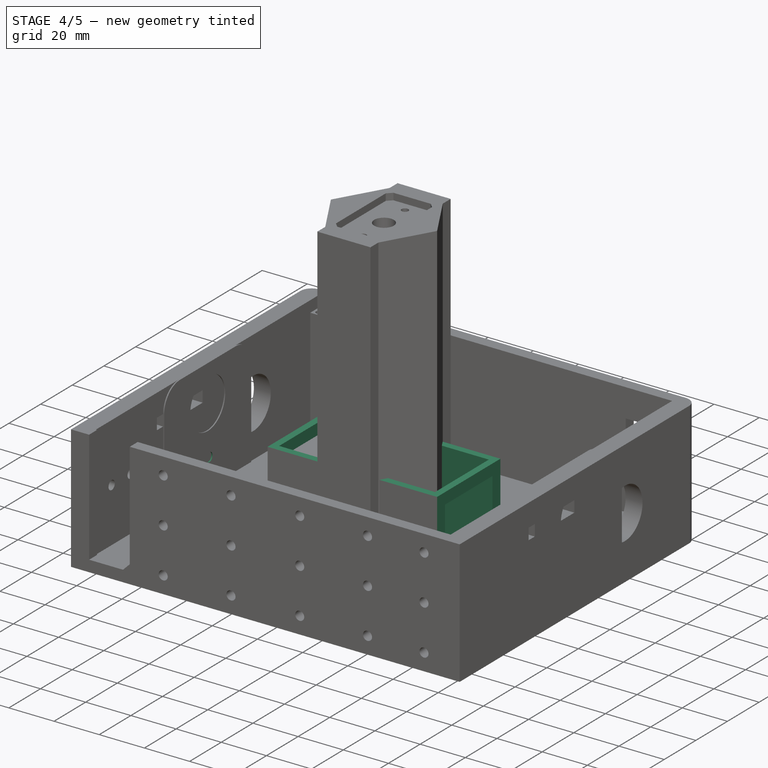
[diagram: stage 4 of 5 — iso view after this stage's code; geometry added in this stage tinted green]
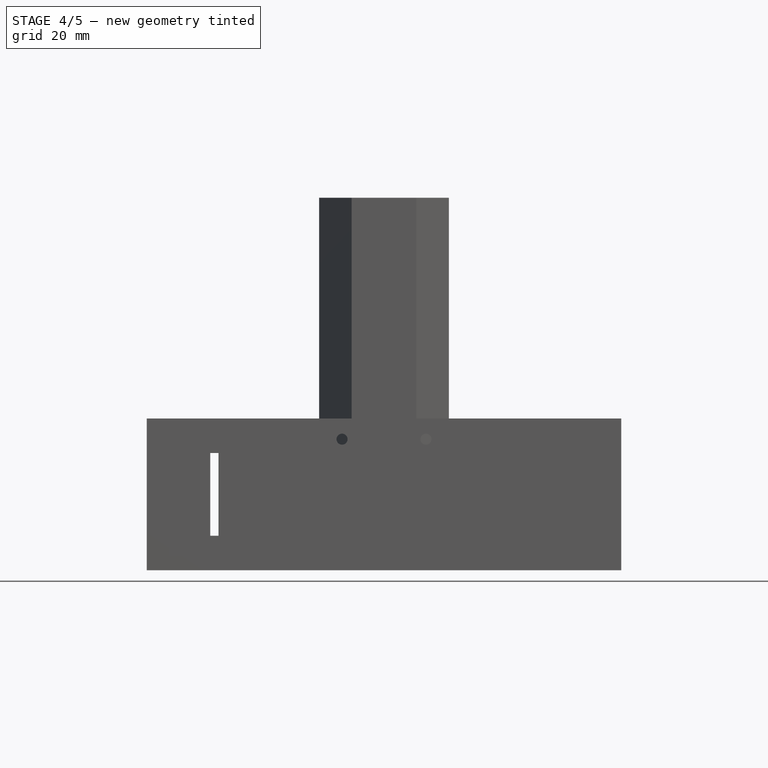
[diagram: stage 4 of 5 — front view after this stage's code; geometry added in this stage tinted green]
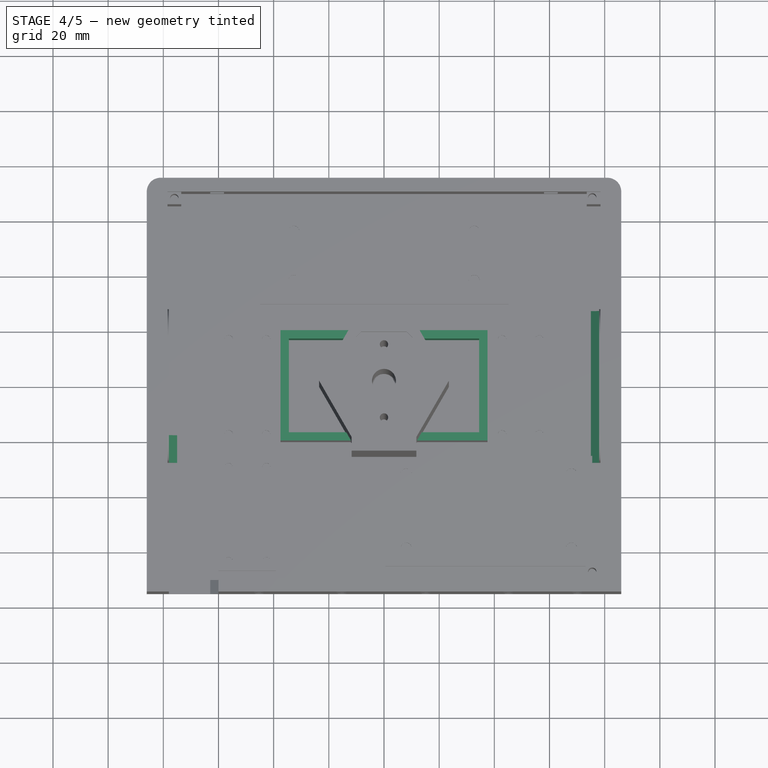
[diagram: stage 4 of 5 — top view after this stage's code; geometry added in this stage tinted green]
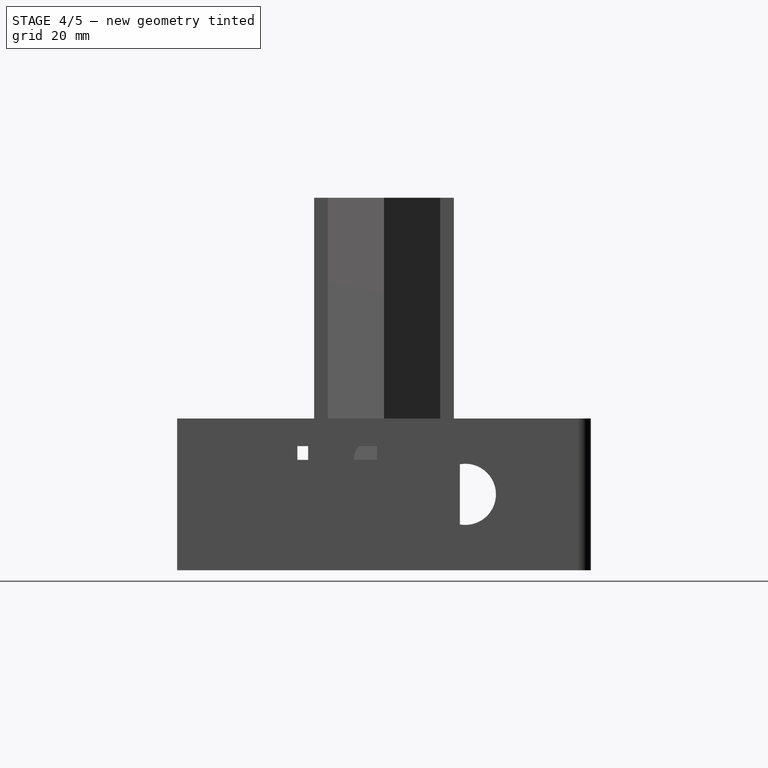
[diagram: stage 4 of 5 — right view after this stage's code; geometry added in this stage tinted green]
FEATURE [Sketcher::SketchObject] Sketch030
  ArcFitTolerance = 1e-06
  AttachmentSupport = -> [XY_Plane012]
  FullyConstrained = true
  MakeInternals = false
  MapMode = 5
  sketch-geometry (5):
    g0: LineSegment StartX=-37.5 StartY=20 StartZ=0 EndX=-37.5 EndY=-20 EndZ=0
    g1: LineSegment StartX=-37.5 StartY=-20 StartZ=0 EndX=37.5 EndY=-20 EndZ=0
    g2: LineSegment StartX=37.5 StartY=-20 StartZ=0 EndX=37.5 EndY=20 EndZ=0
    g3: LineSegment StartX=37.5 StartY=20 StartZ=0 EndX=-37.5 EndY=20 EndZ=0
    g4: GeomPoint [constr] X=0 Y=0 Z=0
  constraints (12):
    c: Coincident(g0,g1)
    c: Coincident(g1,g2)
    c: Coincident(g2,g3)
    c: Coincident(g3,g0)
    c: Vertical(g0)
    c: Vertical(g2)
    c: Horizontal(g1)
    c: Horizontal(g3)
    c: Symmetric(g2,g0,g4)
    c: Coincident(g4,g-1)
    c: DistanceX(g3,g3) = 75
    c: DistanceY(g0,g0) = 40
FEATURE [PartDesign::Pad] Pad012
  Direction = (0,0,1)
  Length = 40
  Length2 = 10
  Profile = -> Sketch030
  ReferenceAxis = -> Sketch030 [N_Axis]
  Refine = true
  Suppressed = false
  Type = 0
FEATURE [Sketcher::SketchObject] Sketch031
  ArcFitTolerance = 1e-06
  AttachmentSupport = -> [Pad012]
  ExternalGeometry = -> [Pad012]
  FullyConstrained = true
  MakeInternals = false
  MapMode = 5
  Placement = pos=(0,0,40) rot=(0,0,1;0rad)
  sketch-geometry (7):
    g0: GeomPoint [constr] X=0 Y=20 Z=0
    g1: GeomPoint [constr] X=-37.5 Y=0 Z=0
    g2: LineSegment StartX=-34.5 StartY=17 StartZ=0 EndX=-34.5 EndY=-17 EndZ=0
    g3: LineSegment StartX=-34.5 StartY=-17 StartZ=0 EndX=34.5 EndY=-17 EndZ=0
    g4: LineSegment StartX=34.5 StartY=-17 StartZ=0 EndX=34.5 EndY=17 EndZ=0
    g5: LineSegment StartX=34.5 StartY=17 StartZ=0 EndX=-34.5 EndY=17 EndZ=0
    g6: GeomPoint [constr] X=0 Y=0 Z=0
  constraints (14):
    c: Symmetric(g-3,g-3,g0)
    c: Symmetric(g-4,g-4,g1)
    c: Coincident(g2,g3)
    c: Coincident(g3,g4)
    c: Coincident(g4,g5)
    c: Coincident(g5,g2)
    c: Vertical(g2)
    c: Vertical(g4)
    c: Horizontal(g3)
    c: Horizontal(g5)
    c: Symmetric(g4,g2,g6)
    c: Coincident(g6,g-1)
    c: Distance(g0,g5) = 3
    c: Distance(g1,g2) = 3
FEATURE [PartDesign::Pocket] Pocket019
  BaseFeature = -> Pad012
  Direction = (0,0,-1)
  Length = 35
  Length2 = 5
  Profile = -> Sketch031
  ReferenceAxis = -> Sketch031 [N_Axis]
  Refine = true
  Suppressed = false
  Type = 0
FEATURE [Sketcher::SketchObject] Sketch032
  ArcFitTolerance = 1e-06
  AttachmentSupport = -> [Pocket019]
  ExternalGeometry = -> [Pocket019]
  FullyConstrained = true
  MakeInternals = false
  MapMode = 5
  Placement = pos=(-37.5,0,0) rot=(0.57735,-0.57735,-0.57735;2.0944rad)
  sketch-geometry (7):
    g0: LineSegment [constr] StartX=0 StartY=40 StartZ=0 EndX=0 EndY=0 EndZ=0
    g1: GeomPoint [constr] X=0 Y=20 Z=0
    g2: LineSegment StartX=-15 StartY=35 StartZ=0 EndX=-15 EndY=5 EndZ=0
    g3: LineSegment StartX=-15 StartY=5 StartZ=0 EndX=15 EndY=5 EndZ=0
    g4: LineSegment StartX=15 StartY=5 StartZ=0 EndX=15 EndY=35 EndZ=0
    g5: LineSegment StartX=15 StartY=35 StartZ=0 EndX=-15 EndY=35 EndZ=0
    g6: GeomPoint [constr] X=0 Y=20 Z=0
  constraints (15):
    c: Symmetric(g-3,g-3,g0)
    c: Coincident(g0,g-1)
    c: Symmetric(g0,g0,g1)
    c: Coincident(g2,g3)
    c: Coincident(g3,g4)
    c: Coincident(g4,g5)
    c: Coincident(g5,g2)
    c: Vertical(g2)
    c: Vertical(g4)
    c: Horizontal(g3)
    c: Horizontal(g5)
    c: Symmetric(g4,g2,g6)
    c: Coincident(g6,g1)
    c: DistanceX(g5,g5) = 30
    c: DistanceY(g2,g2) = 30
FEATURE [PartDesign::Pocket] Pocket020  label="SidePocket001"
  BaseFeature = -> Pocket019
  Direction = (1,0,0)
  Length = 3
  Length2 = 5
  Profile = -> Sketch032
  ReferenceAxis = -> Sketch032 [N_Axis]
  Refine = true
  Suppressed = false
  Type = 1
FEATURE [PartDesign::Body] Body012  label="CircuitBox"
  AllowCompound = false
  Group = -> [Sketch030,Pad012,Sketch031,Pocket019,Sketch032,Pocket020,Sketch033,Pocket021,Sketch034,Pocket022]
  Origin = -> Origin012
  Placement = pos=(37,-45,8) rot=(0,0,1;0rad)
  Tip = -> Pocket022
FEATURE [Sketcher::SketchObject] Sketch035
  ArcFitTolerance = 1e-06
  AttachmentSupport = -> [XY_Plane013]
  FullyConstrained = true
  MakeInternals = false
  MapMode = 5
  sketch-geometry (5):
    g0: LineSegment StartX=-62 StartY=20.5 StartZ=0 EndX=-62 EndY=-20.5 EndZ=0
    g1: LineSegment StartX=-62 StartY=-20.5 StartZ=0 EndX=62 EndY=-20.5 EndZ=0
    g2: LineSegment StartX=62 StartY=-20.5 StartZ=0 EndX=62 EndY=20.5 EndZ=0
    g3: LineSegment StartX=62 StartY=20.5 StartZ=0 EndX=-62 EndY=20.5 EndZ=0
    g4: GeomPoint [constr] X=0 Y=0 Z=0
  constraints (12):
    c: Coincident(g0,g1)
    c: Coincident(g1,g2)
    c: Coincident(g2,g3)
    c: Coincident(g3,g0)
    c: Vertical(g0)
    c: Vertical(g2)
    c: Horizontal(g1)
    c: Horizontal(g3)
    c: Symmetric(g2,g0,g4)
    c: Coincident(g4,g-1)
    c: DistanceX(g3,g3) = 124
    c: DistanceY(g0,g0) = 41
FEATURE [PartDesign::Pad] Pad013  label="BasePad001"
  Direction = (0,0,1)
  Length = 5
  Length2 = 10
  Profile = -> Sketch035
  ReferenceAxis = -> Sketch035 [N_Axis]
  Refine = true
  Suppressed = false
  Type = 0
FEATURE [Sketcher::SketchObject] Sketch036
  ArcFitTolerance = 1e-06
  AttachmentSupport = -> [Pad013]
  ExternalGeometry = -> [Pad013]
  FullyConstrained = true
  MakeInternals = false
  MapMode = 5
  Placement = pos=(0,0,5) rot=(0,0,1;0rad)
  sketch-geometry (5):
    g0: Circle CenterX=-58.225 CenterY=17.2214 CenterZ=0 NormalX=0 NormalY=0 NormalZ=1 AngleXU=0 Radius=1.5
    g1: Circle CenterX=-58.225 CenterY=-17.2214 CenterZ=0 NormalX=0 NormalY=0 NormalZ=1 AngleXU=0 Radius=1.5
    g2: GeomPoint [constr] X=-57 Y=20.5 Z=0
    g3: Circle CenterX=58.225 CenterY=17.2214 CenterZ=0 NormalX=0 NormalY=0 NormalZ=1 AngleXU=0 Radius=1.5
    g4: Circle CenterX=58.225 CenterY=-17.2214 CenterZ=0 NormalX=0 NormalY=0 NormalZ=1 AngleXU=0 Radius=1.5
  constraints (12):
    c: Equal(g1,g0)
    c: Diameter(g1) = 3
    c: Distance(g0,g-4) = 5
    c: Distance(g1,g-5) = 5
    c: Vertical(g1,g0)
    c: PointOnObject(g2,g-3)
    c: Distance(g2,g-4) = 5
    c: Distance(g0,g2) = 3.5
    c: Equal(g4,g3)
    c: Diameter(g4) = 3
    c: Block(g3)
    c: Block(g4)
FEATURE [PartDesign::Pocket] Pocket023  label="ScrewPocket005"
  BaseFeature = -> Pad013
  Direction = (0,0,-1)
  Length = 5
  Length2 = 5
  Profile = -> Sketch036
  ReferenceAxis = -> Sketch036 [N_Axis]
  Refine = true
  Suppressed = false
  Type = 0
FEATURE [Sketcher::SketchObject] Sketch037
  ArcFitTolerance = 1e-06
  AttachmentSupport = -> [Pocket023]
  ExternalGeometry = -> [Pocket023]
  FullyConstrained = true
  MakeInternals = false
  MapMode = 5
  Placement = pos=(0,0,5) rot=(0,0,1;0rad)
  sketch-geometry (8):
    g0: LineSegment StartX=-38.0606 StartY=20.5 StartZ=0 EndX=-38.0606 EndY=12.5 EndZ=0
    g1: LineSegment StartX=-38.0606 StartY=12.5 StartZ=0 EndX=-8.06064 EndY=12.5 EndZ=0
    g2: LineSegment StartX=-8.06064 StartY=12.5 StartZ=0 EndX=-8.06064 EndY=20.5 EndZ=0
    g3: LineSegment StartX=-8.06064 StartY=20.5 StartZ=0 EndX=-38.0606 EndY=20.5 EndZ=0
    g4: LineSegment StartX=-38.0606 StartY=-12.5 StartZ=0 EndX=-38.0606 EndY=-20.5 EndZ=0
    g5: LineSegment StartX=-38.0606 StartY=-20.5 StartZ=0 EndX=-8.06064 EndY=-20.5 EndZ=0
    g6: LineSegment StartX=-8.06064 StartY=-20.5 StartZ=0 EndX=-8.06064 EndY=-12.5 EndZ=0
    g7: LineSegment StartX=-8.06064 StartY=-12.5 StartZ=0 EndX=-38.0606 EndY=-12.5 EndZ=0
  constraints (25):
    c: Coincident(g0,g1)
    c: Coincident(g1,g2)
    c: Coincident(g2,g3)
    c: Coincident(g3,g0)
    c: Vertical(g0)
    c: Vertical(g2)
    c: Horizontal(g1)
    c: Horizontal(g3)
    c: PointOnObject(g0,g-4)
    c: Coincident(g4,g5)
    c: Coincident(g5,g6)
    c: Coincident(g6,g7)
    c: Coincident(g7,g4)
    c: Vertical(g4)
    c: Vertical(g6)
    c: Horizontal(g5)
    c: Horizontal(g7)
    c: PointOnObject(g5,g-3)
    c: Vertical(g4,g0)
    c: Vertical(g1,g6)
    c: DistanceX(g3,g3) = 30
    c: DistanceY(g0,g0) = 8
    c: DistanceY(g4,g4) = 8
    c: Block(g1)
    c: Block(g7)
FEATURE [PartDesign::Pocket] Pocket024
  BaseFeature = -> Pocket023
  Direction = (0,0,-1)
  Length = 5
  Length2 = 5
  Profile = -> Sketch037
  ReferenceAxis = -> Sketch037 [N_Axis]
  Refine = true
  Suppressed = false
  Type = 0
FEATURE [PartDesign::Chamfer] Chamfer007
  Angle = 45
  Base = -> Fillet007 [Edge47]
  BaseFeature = -> Fillet007
  ChamferType = 0
  FlipDirection = false
  Refine = true
  Size = 3
  Size2 = 1
  SupportTransform = false
  Suppressed = false
  UseAllEdges = false
FEATURE [PartDesign::Chamfer] Chamfer008
  Angle = 45
  Base = -> Chamfer007 [Edge20]
  BaseFeature = -> Chamfer007
  ChamferType = 0
  FlipDirection = false
  Refine = true
  Size = 3
  Size2 = 1
  SupportTransform = false
  Suppressed = false
  UseAllEdges = false
FEATURE [PartDesign::FeaturePython] TimingGear001  # WARN: FeaturePython — macro-defined, semantics opaque (R4)
  AttacherType = Attacher::AttachEngine3D
  Suppressed = false
  h = 0.75
  height = 5
  num_teeth = 45
  offset = 0.4
  pitch = 2
  r0 = 0.555
  r1 = 1
  rs = 0.15
  type = 0
  u = 0.254
  version = 1.3.0
FEATURE [Sketcher::SketchObject] Sketch051
  ArcFitTolerance = 1e-06
  AttachmentSupport = -> [TimingGear001]
  FullyConstrained = true
  MakeInternals = false
  MapMode = 5
  Placement = pos=(0,0,5) rot=(0,0,1;0rad)
  sketch-geometry (1):
    g0: Circle CenterX=0 CenterY=0 CenterZ=0 NormalX=0 NormalY=0 NormalZ=1 AngleXU=0 Radius=6
  constraints (2):
    c: Coincident(g0,g-1)
    c: Diameter(g0) = 12
FEATURE [PartDesign::Pad] Pad020
  BaseFeature = -> TimingGear001
  Direction = (0,0,1)
  Length = 6
  Length2 = 10
  Profile = -> Sketch051
  ReferenceAxis = -> Sketch051 [N_Axis]
  Refine = true
  Suppressed = false
  Type = 0
FEATURE [Sketcher::SketchObject] Sketch053
  ArcFitTolerance = 1e-06
  AttachmentSupport = -> [Pad020]
  FullyConstrained = true
  MakeInternals = false
  MapMode = 5
  Placement = pos=(0,0,11) rot=(0,0,1;0rad)
  sketch-geometry (1):
    g0: Circle CenterX=0 CenterY=0 CenterZ=0 NormalX=0 NormalY=0 NormalZ=1 AngleXU=0 Radius=4.25
  constraints (2):
    c: Coincident(g0,g-1)
    c: Diameter(g0) = 8.5
FEATURE [PartDesign::Pocket] Pocket035
  BaseFeature = -> Pad020
  Direction = (0,0,-1)
  Length = 5
  Length2 = 5
  Profile = -> Sketch053
  ReferenceAxis = -> Sketch053 [N_Axis]
  Refine = true
  Suppressed = false
  Type = 1
FEATURE [Sketcher::SketchObject] Sketch054
  ArcFitTolerance = 1e-06
  AttachmentSupport = -> [XZ_Plane017]
  FullyConstrained = true
  MakeInternals = false
  MapMode = 5
  Placement = pos=(0,0,0) rot=(1,0,0;1.5708rad)
  sketch-geometry (1):
    g0: Circle CenterX=0 CenterY=7.79762 CenterZ=0 NormalX=0 NormalY=0 NormalZ=1 AngleXU=0 Radius=1.5
  constraints (3):
    c: PointOnObject(g0,g-2)
    c: Diameter(g0) = 3
    c: Block(g0)
FEATURE [PartDesign::Pocket] Pocket036
  BaseFeature = -> Pocket035
  Direction = (0,1,-2e-16)
  Length = 5
  Length2 = 5
  Midplane = true
  Profile = -> Sketch054
  ReferenceAxis = -> Sketch054 [N_Axis]
  Refine = true
  Suppressed = false
  Type = 1
FEATURE [PartDesign::Body] Body017  label="DrumPulleyGear"
  AllowCompound = false
  Group = -> [TimingGear001,Sketch051,Pad020,Sketch053,Pocket035,Sketch054,Pocket036]
  Origin = -> Origin017
  Placement = pos=(-67,-114,28) rot=(0,1,0;4.71239rad)
  Tip = -> Pocket036
FEATURE [Sketcher::SketchObject] Sketch056
  ArcFitTolerance = 1e-06
  AttachmentSupport = -> [XY_Plane018]
  FullyConstrained = true
  MakeInternals = false
  MapMode = 5
  sketch-geometry (5):
    g0: LineSegment StartX=-78 StartY=70 StartZ=0 EndX=-78 EndY=-70 EndZ=0
    g1: LineSegment StartX=-78 StartY=-70 StartZ=0 EndX=78 EndY=-70 EndZ=0
    g2: LineSegment StartX=78 StartY=-70 StartZ=0 EndX=78 EndY=70 EndZ=0
    g3: LineSegment StartX=78 StartY=70 StartZ=0 EndX=-78 EndY=70 EndZ=0
    g4: GeomPoint [constr] X=0 Y=0 Z=0
  constraints (12):
    c: Coincident(g0,g1)
    c: Coincident(g1,g2)
    c: Coincident(g2,g3)
    c: Coincident(g3,g0)
    c: Vertical(g0)
    c: Vertical(g2)
    c: Horizontal(g1)
    c: Horizontal(g3)
    c: Symmetric(g2,g0,g4)
    c: Coincident(g4,g-1)
    c: DistanceY(g0,g0) = 140
    c: DistanceX(g3,g3) = 156
FEATURE [PartDesign::Pad] Pad021  label="BasePad004"
  Direction = (0,0,1)
  Length = 5
  Length2 = 10
  Profile = -> Sketch056
  ReferenceAxis = -> Sketch056 [N_Axis]
  Refine = true
  Suppressed = false
  Type = 0
FEATURE [Sketcher::SketchObject] Sketch061
  ArcFitTolerance = 1e-06
  AttachmentSupport = -> [Pad021]
  ExternalGeometry = -> [Pad021]
  FullyConstrained = true
  MakeInternals = false
  MapMode = 5
  Placement = pos=(0,0,5) rot=(0,0,1;0rad)
  sketch-geometry (5):
    g0: Circle CenterX=-75.4214 CenterY=67.7839 CenterZ=0 NormalX=0 NormalY=0 NormalZ=1 AngleXU=0 Radius=1.5
    g1: Circle CenterX=-75.4214 CenterY=-67.7839 CenterZ=0 NormalX=0 NormalY=0 NormalZ=1 AngleXU=0 Radius=1.5
    g2: GeomPoint X=-74.5 Y=70 Z=0
    g3: Circle CenterX=75.4214 CenterY=-67.7839 CenterZ=0 NormalX=0 NormalY=0 NormalZ=1 AngleXU=0 Radius=1.5
    g4: Circle CenterX=75.4214 CenterY=67.7839 CenterZ=0 NormalX=0 NormalY=0 NormalZ=1 AngleXU=0 Radius=1.5
  constraints (12):
    c: Equal(g1,g0)
    c: Diameter(g1) = 3
    c: Vertical(g0,g1)
    c: Distance(g0,g-4) = 3.4
    c: PointOnObject(g2,g-3)
    c: Distance(g2,g-4) = 3.5
    c: Distance(g0,g2) = 2.4
    c: Distance(g1,g-5) = 3.4
    c: Equal(g3,g4)
    c: Diameter(g3) = 3
    c: Block(g3)
    c: Block(g4)
FEATURE [PartDesign::Pocket] Pocket041  label="ScrewPocket008"
  BaseFeature = -> Pad021
  Direction = (0,0,-1)
  Length = 5
  Length2 = 5
  Profile = -> Sketch061
  ReferenceAxis = -> Sketch061 [N_Axis]
  Refine = true
  Suppressed = false
  Type = 1
FEATURE [PartDesign::Body] Body018  label="Hood"
  AllowCompound = false
  Group = -> [Sketch056,Pad021,Sketch061,Pocket041]
  Origin = -> Origin018
  Placement = pos=(0,0,50) rot=(0,0,1;0rad)
  Tip = -> Pocket041
FEATURE [Sketcher::SketchObject] Sketch062
  ArcFitTolerance = 1e-06
  AttachmentSupport = -> [XY_Plane019]
  FullyConstrained = true
  MakeInternals = false
  MapMode = 5
  sketch-geometry (5):
    g0: LineSegment StartX=-30 StartY=7.5 StartZ=0 EndX=-30 EndY=-7.5 EndZ=0
    g1: LineSegment StartX=-30 StartY=-7.5 StartZ=0 EndX=30 EndY=-7.5 EndZ=0
    g2: LineSegment StartX=30 StartY=-7.5 StartZ=0 EndX=30 EndY=7.5 EndZ=0
    g3: LineSegment StartX=30 StartY=7.5 StartZ=0 EndX=-30 EndY=7.5 EndZ=0
    g4: GeomPoint [constr] X=0 Y=0 Z=0
  constraints (12):
    c: Coincident(g0,g1)
    c: Coincident(g1,g2)
    c: Coincident(g2,g3)
    c: Coincident(g3,g0)
    c: Vertical(g0)
    c: Vertical(g2)
    c: Horizontal(g1)
    c: Horizontal(g3)
    c: Symmetric(g2,g0,g4)
    c: Coincident(g4,g-1)
    c: DistanceX(g3,g3) = 60
    c: DistanceY(g0,g0) = 15
FEATURE [PartDesign::Pad] Pad023
  Direction = (0,0,1)
  Length = 4
  Length2 = 10
  Profile = -> Sketch062
  ReferenceAxis = -> Sketch062 [N_Axis]
  Refine = true
  Suppressed = false
  Type = 0
FEATURE [Sketcher::SketchObject] Sketch063
  ArcFitTolerance = 1e-06
  AttachmentSupport = -> [Pad023]
  ExternalGeometry = -> [Pad023]
  FullyConstrained = true
  MakeInternals = false
  MapMode = 5
  Placement = pos=(0,0,4) rot=(0,0,1;0rad)
  sketch-geometry (4):
    g0: Circle CenterX=-22 CenterY=0 CenterZ=0 NormalX=0 NormalY=0 NormalZ=1 AngleXU=0 Radius=2
    g1: Circle CenterX=-10 CenterY=0 CenterZ=0 NormalX=0 NormalY=0 NormalZ=1 AngleXU=0 Radius=2
    g2: Circle CenterX=22 CenterY=0 CenterZ=0 NormalX=0 NormalY=0 NormalZ=1 AngleXU=0 Radius=2
    g3: Circle CenterX=10 CenterY=0 CenterZ=0 NormalX=0 NormalY=0 NormalZ=1 AngleXU=0 Radius=2
  constraints (11):
    c: PointOnObject(g0,g-1)
    c: Distance(g0,g-4) = 8
    c: Diameter(g0) = 4
    c: PointOnObject(g1,g-1)
    c: Diameter(g1) = 4
    c: Distance(g1,g0) = 12
    c: Diameter(g2) = 4
    c: Diameter(g3) = 4
    c: Distance(g3,g2) = 12
    c: Block(g3)
    c: Block(g2)
FEATURE [PartDesign::Pocket] Pocket042  label="ScrewPocket009"
  BaseFeature = -> Pad023
  Direction = (0,0,-1)
  Length = 5
  Length2 = 5
  Profile = -> Sketch063
  ReferenceAxis = -> Sketch063 [N_Axis]
  Refine = true
  Suppressed = false
  Type = 1
FEATURE [PartDesign::Fillet] Fillet008
  Base = -> Pocket042 [Edge5]
  BaseFeature = -> Pocket042
  Radius = 5
  Refine = true
  SupportTransform = false
  Suppressed = false
  UseAllEdges = false
FEATURE [PartDesign::Fillet] Fillet009
  Base = -> Fillet008 [Edge23]
  BaseFeature = -> Fillet008
  Radius = 5
  Refine = true
  SupportTransform = false
  Suppressed = false
  UseAllEdges = false
FEATURE [PartDesign::Fillet] Fillet010
  Base = -> Fillet009 [Edge18]
  BaseFeature = -> Fillet009
  Radius = 5
  Refine = true
  SupportTransform = false
  Suppressed = false
  UseAllEdges = false
FEATURE [PartDesign::Fillet] Fillet011
  Base = -> Fillet010 [Edge19]
  BaseFeature = -> Fillet010
  Radius = 5
  Refine = true
  SupportTransform = false
  Suppressed = false
  UseAllEdges = false
FEATURE [Sketcher::SketchObject] Sketch065
  ArcFitTolerance = 1e-06
  AttachmentSupport = -> [Chamfer008]
  FullyConstrained = true
  MakeInternals = false
  MapMode = 5
  Placement = pos=(-86,0,0) rot=(0.57735,-0.57735,-0.57735;2.0944rad)
  sketch-geometry (2):
    g0: Circle CenterX=-0.998734 CenterY=4.99614 CenterZ=0 NormalX=0 NormalY=0 NormalZ=1 AngleXU=0 Radius=2
    g1: Circle CenterX=-0.999865 CenterY=16.9996 CenterZ=0 NormalX=0 NormalY=0 NormalZ=1 AngleXU=0 Radius=2
  constraints (4):
    c: Diameter(g0) = 4
    c: Diameter(g1) = 4
    c: Block(g0)
    c: Block(g1)
FEATURE [PartDesign::Pocket] Pocket044  label="ChassiWeaponReinforcementScrew001"
  BaseFeature = -> Chamfer008
  Direction = (1,0,0)
  Length = 8
  Length2 = 5
  Profile = -> Sketch065
  ReferenceAxis = -> Sketch065 [N_Axis]
  Refine = true
  Suppressed = false
  Type = 0
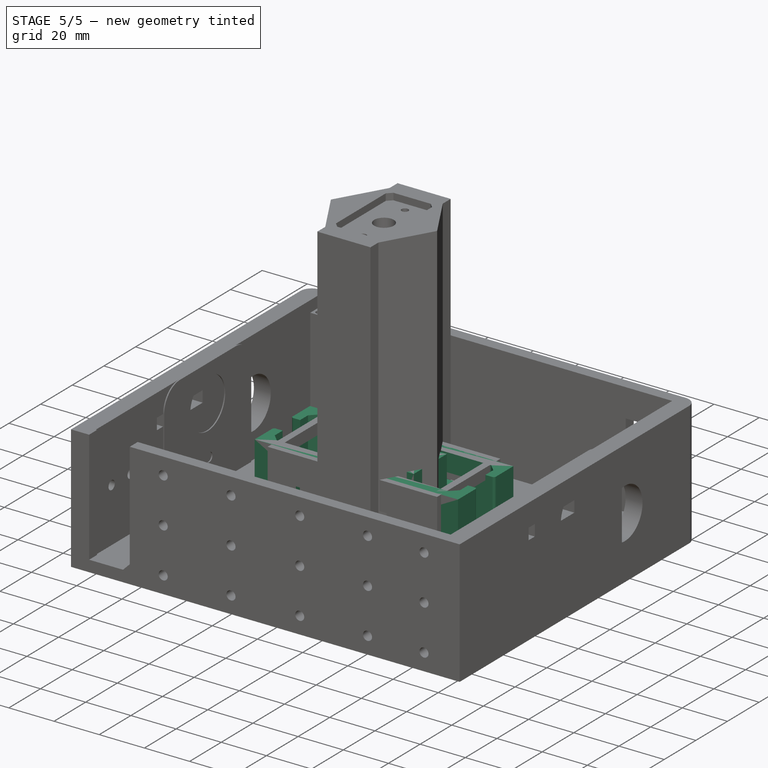
[diagram: stage 5 of 5 — iso view after this stage's code; geometry added in this stage tinted green]
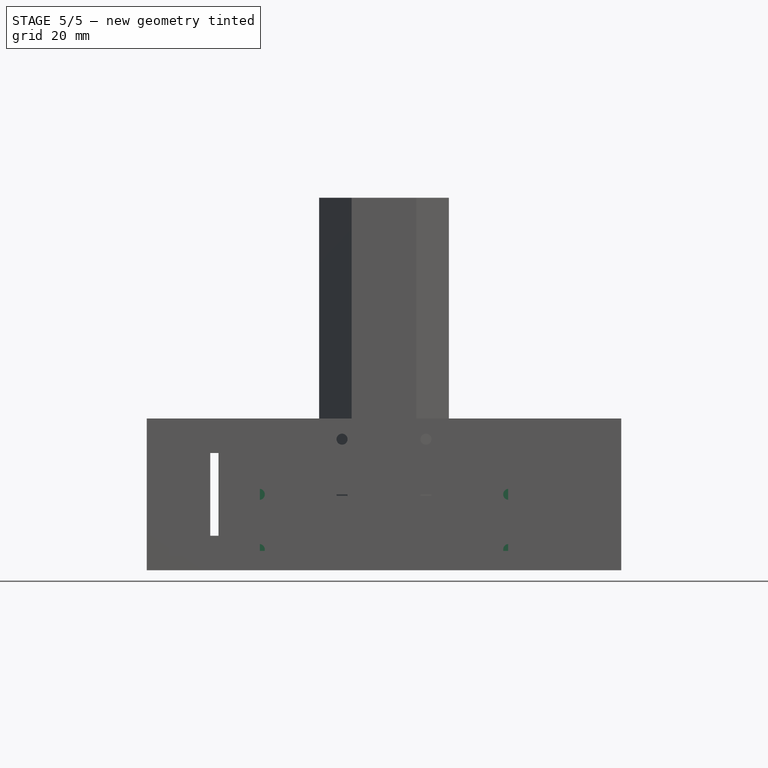
[diagram: stage 5 of 5 — front view after this stage's code; geometry added in this stage tinted green]
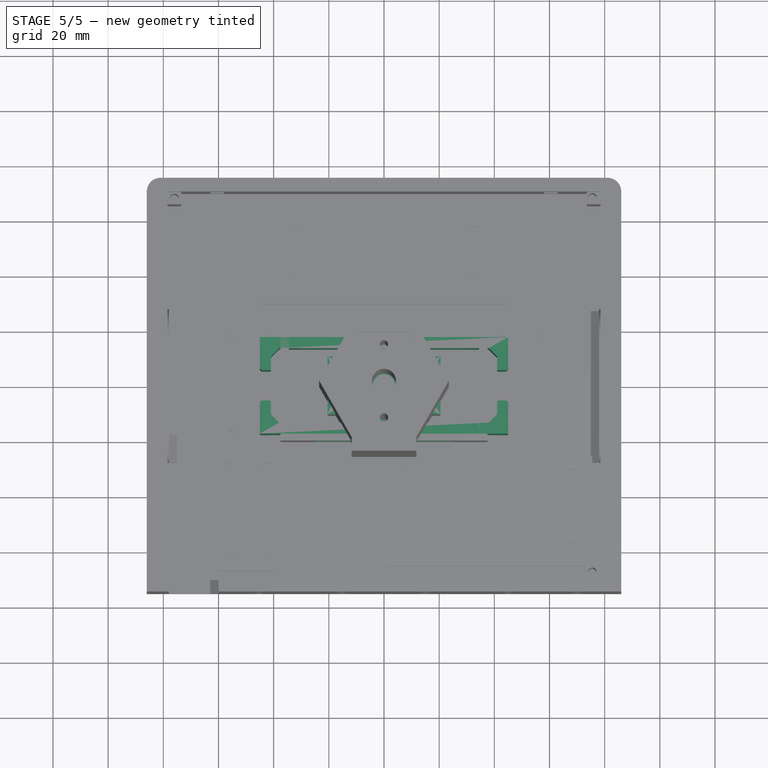
[diagram: stage 5 of 5 — top view after this stage's code; geometry added in this stage tinted green]
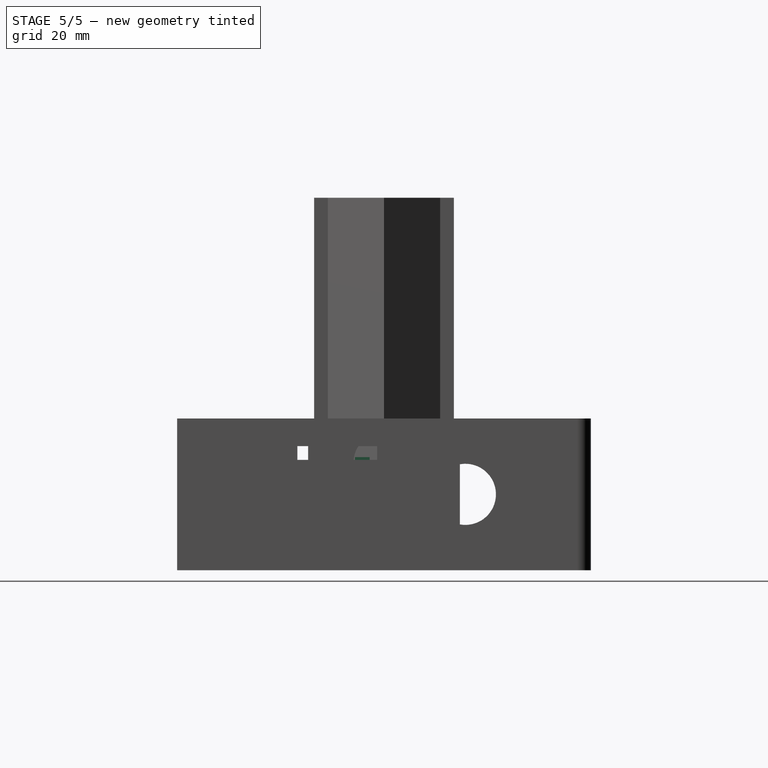
[diagram: stage 5 of 5 — right view after this stage's code; geometry added in this stage tinted green]
FEATURE [PartDesign::FeaturePython] InvoluteGear001  # WARN: FeaturePython — macro-defined, semantics opaque (R4)
  AttacherType = Attacher::AttachEngine3D
  Suppressed = false
  addendum_diameter = 37
  angular_backlash = 0
  axle_hole = false
  axle_holesize = 10
  backlash = 0
  clearance = 0.25
  double_helix = false
  head = 0
  head_fillet = 0
  height = 8
  helix_angle = 0
  module = 1
  num_teeth = 35
  numpoints = 20
  offset_hole = false
  offset_holeoffset = 10
  offset_holesize = 10
  pitch_diameter = 35
  pressure_angle = 20
  properties_from_tool = false
  reversed_backlash = false
  root_diameter = 32.5
  root_fillet = 0
  shift = 0
  simple = false
  transverse_pitch = 3.14159
  traverse_module = 1
  undercut = false
  version = 1.3.0
  expr: angular_backlash = backlash / pitch_diameter * 360 ° / pi
FEATURE [Sketcher::SketchObject] Sketch005
  ArcFitTolerance = 1e-06
  AttachmentSupport = -> [InvoluteGear001]
  FullyConstrained = true
  MakeInternals = false
  MapMode = 5
  Placement = pos=(0,0,8) rot=(0,0,1;0rad)
  sketch-geometry (1):
    g0: Circle CenterX=0 CenterY=0 CenterZ=0 NormalX=0 NormalY=0 NormalZ=1 AngleXU=0 Radius=7
  constraints (2):
    c: Coincident(g0,g-1)
    c: Diameter(g0) = 14
FEATURE [PartDesign::Pad] Pad001
  BaseFeature = -> InvoluteGear001
  Direction = (0,0,1)
  Length = 6
  Length2 = 10
  Profile = -> Sketch005
  ReferenceAxis = -> Sketch005 [N_Axis]
  Refine = true
  Suppressed = false
  Type = 0
FEATURE [Sketcher::SketchObject] Sketch006
  ArcFitTolerance = 1e-06
  AttachmentSupport = -> [Pad001]
  FullyConstrained = true
  MakeInternals = false
  MapMode = 5
  Placement = pos=(0,0,14) rot=(0,0,1;0rad)
  sketch-geometry (1):
    g0: Circle CenterX=0 CenterY=0 CenterZ=0 NormalX=0 NormalY=0 NormalZ=1 AngleXU=0 Radius=4.25
  constraints (2):
    c: Coincident(g0,g-1)
    c: Diameter(g0) = 8.5
FEATURE [PartDesign::Pocket] Pocket004  label="AxlePocket001"
  BaseFeature = -> Pad001
  Direction = (0,0,-1)
  Length = 5
  Length2 = 5
  Profile = -> Sketch006
  ReferenceAxis = -> Sketch006 [N_Axis]
  Refine = true
  Suppressed = false
  Type = 1
FEATURE [Sketcher::SketchObject] Sketch007
  ArcFitTolerance = 1e-06
  AttachmentSupport = -> [XZ_Plane002]
  FullyConstrained = true
  MakeInternals = false
  MapMode = 5
  Placement = pos=(0,0,0) rot=(1,0,0;1.5708rad)
  sketch-geometry (1):
    g0: Circle CenterX=0 CenterY=10.9197 CenterZ=0 NormalX=0 NormalY=0 NormalZ=1 AngleXU=0 Radius=1.5
  constraints (3):
    c: PointOnObject(g0,g-2)
    c: Diameter(g0) = 3
    c: Block(g0)
FEATURE [PartDesign::Pocket] Pocket005  label="ScrewPocket011"
  BaseFeature = -> Pocket004
  Direction = (0,1,-2e-16)
  Length = 5
  Length2 = 5
  Midplane = true
  Profile = -> Sketch007
  ReferenceAxis = -> Sketch007 [N_Axis]
  Refine = true
  Suppressed = false
  Type = 1
FEATURE [PartDesign::Body] Body002  label="WheelGear"
  AllowCompound = false
  Group = -> [InvoluteGear001,Sketch005,Pad001,Sketch006,Pocket004,Sketch007,Pocket005]
  Origin = -> Origin002
  Placement = pos=(-64,27.8978,27.2235) rot=(0.129428,0.983106,-0.129428;4.69535rad)
  Tip = -> Pocket005
FEATURE [Sketcher::SketchObject] Sketch008
  ArcFitTolerance = 1e-06
  AttachmentSupport = -> [XY_Plane003]
  FullyConstrained = true
  MakeInternals = false
  MapMode = 5
  sketch-geometry (5):
    g0: LineSegment StartX=-45 StartY=17.5 StartZ=0 EndX=-45 EndY=-17.5 EndZ=0
    g1: LineSegment StartX=-45 StartY=-17.5 StartZ=0 EndX=45 EndY=-17.5 EndZ=0
    g2: LineSegment StartX=45 StartY=-17.5 StartZ=0 EndX=45 EndY=17.5 EndZ=0
    g3: LineSegment StartX=45 StartY=17.5 StartZ=0 EndX=-45 EndY=17.5 EndZ=0
    g4: GeomPoint [constr] X=0 Y=0 Z=0
  constraints (12):
    c: Coincident(g0,g1)
    c: Coincident(g1,g2)
    c: Coincident(g2,g3)
    c: Coincident(g3,g0)
    c: Vertical(g0)
    c: Vertical(g2)
    c: Horizontal(g1)
    c: Horizontal(g3)
    c: Symmetric(g2,g0,g4)
    c: Coincident(g4,g-1)
    c: DistanceX(g3,g3) = 90
    c: DistanceY(g0,g0) = 35
FEATURE [PartDesign::Pad] Pad002  label="BasePad"
  Direction = (0,0,1)
  Length = 40
  Length2 = 10
  Profile = -> Sketch008
  ReferenceAxis = -> Sketch008 [N_Axis]
  Refine = true
  Suppressed = false
  Type = 0
FEATURE [Sketcher::SketchObject] Sketch009
  ArcFitTolerance = 1e-06
  AttachmentSupport = -> [Pad002]
  ExternalGeometry = -> [Pad002]
  FullyConstrained = true
  MakeInternals = false
  MapMode = 5
  Placement = pos=(0,0,40) rot=(0,0,1;0rad)
  sketch-geometry (7):
    g0: LineSegment StartX=-41 StartY=13.5 StartZ=0 EndX=-41 EndY=-13.5 EndZ=0
    g1: LineSegment StartX=-41 StartY=-13.5 StartZ=0 EndX=41 EndY=-13.5 EndZ=0
    g2: LineSegment StartX=41 StartY=-13.5 StartZ=0 EndX=41 EndY=13.5 EndZ=0
    g3: LineSegment StartX=41 StartY=13.5 StartZ=0 EndX=-41 EndY=13.5 EndZ=0
    g4: GeomPoint [constr] X=0 Y=0 Z=0
    g5: GeomPoint [constr] X=0 Y=17.5 Z=0
    g6: GeomPoint [constr] X=-45 Y=0 Z=0
  constraints (14):
    c: Coincident(g0,g1)
    c: Coincident(g1,g2)
    c: Coincident(g2,g3)
    c: Coincident(g3,g0)
    c: Vertical(g0)
    c: Vertical(g2)
    c: Horizontal(g1)
    c: Horizontal(g3)
    c: Symmetric(g2,g0,g4)
    c: Coincident(g4,g-1)
    c: Symmetric(g-3,g-3,g5)
    c: Symmetric(g-4,g-4,g6)
    c: Distance(g5,g3) = 4
    c: Distance(g6,g0) = 4
FEATURE [PartDesign::Pocket] Pocket006  label="BasePocket"
  BaseFeature = -> Pad002
  Direction = (0,0,-1)
  Length = 35
  Length2 = 5
  Profile = -> Sketch009
  ReferenceAxis = -> Sketch009 [N_Axis]
  Refine = true
  Suppressed = false
  Type = 0
FEATURE [Sketcher::SketchObject] Sketch010
  ArcFitTolerance = 1e-06
  AttachmentSupport = -> [Pocket006]
  ExternalGeometry = -> [Pocket006]
  FullyConstrained = true
  MakeInternals = false
  MapMode = 5
  Placement = pos=(-45,0,0) rot=(0.57735,-0.57735,-0.57735;2.0944rad)
  sketch-geometry (6):
    g0: LineSegment [constr] StartX=0 StartY=40 StartZ=0 EndX=0 EndY=0 EndZ=0
    g1: GeomPoint X=0 Y=20 Z=0
    g2: LineSegment StartX=-5.51339 StartY=40 StartZ=0 EndX=-5.51339 EndY=5 EndZ=0
    g3: LineSegment StartX=-5.51339 StartY=5 StartZ=0 EndX=5.48661 EndY=5 EndZ=0
    g4: LineSegment StartX=5.48661 StartY=5 StartZ=0 EndX=5.48661 EndY=40 EndZ=0
    g5: LineSegment StartX=5.48661 StartY=40 StartZ=0 EndX=-5.51339 EndY=40 EndZ=0
  constraints (15):
    c: Symmetric(g-3,g-3,g0)
    c: Coincident(g0,g-1)
    c: Symmetric(g0,g0,g1)
    c: Coincident(g2,g3)
    c: Coincident(g3,g4)
    c: Coincident(g4,g5)
    c: Coincident(g5,g2)
    c: Vertical(g2)
    c: Vertical(g4)
    c: Horizontal(g3)
    c: Horizontal(g5)
    c: PointOnObject(g2,g-3)
    c: DistanceX(g5,g5) = 11
    c: DistanceY(g2,g2) = 35
    c: Block(g2)
FEATURE [PartDesign::Pocket] Pocket007  label="CablePocket"
  BaseFeature = -> Pocket006
  Direction = (1,0,0)
  Length = 3
  Length2 = 5
  Profile = -> Sketch010
  ReferenceAxis = -> Sketch010 [N_Axis]
  Refine = true
  Suppressed = false
  Type = 1
FEATURE [Sketcher::SketchObject] Sketch011
  ArcFitTolerance = 1e-06
  AttachmentSupport = -> [Pocket007]
  ExternalGeometry = -> [Pocket007]
  FullyConstrained = true
  MakeInternals = false
  MapMode = 5
  Placement = pos=(0,0,0) rot=(1,0,0;3.14159rad)
  sketch-geometry (5):
    g0: Circle CenterX=-32.7 CenterY=8.91455 CenterZ=0 NormalX=0 NormalY=0 NormalZ=1 AngleXU=0 Radius=2
    g1: Circle CenterX=-32.7 CenterY=-8.91455 CenterZ=0 NormalX=0 NormalY=0 NormalZ=1 AngleXU=0 Radius=2
    g2: GeomPoint [constr] X=-30 Y=17.5 Z=0
    g3: Circle CenterX=32.7 CenterY=8.91455 CenterZ=0 NormalX=0 NormalY=0 NormalZ=1 AngleXU=0 Radius=2
    g4: Circle CenterX=32.7 CenterY=-8.91455 CenterZ=0 NormalX=0 NormalY=0 NormalZ=1 AngleXU=0 Radius=2
  constraints (12):
    c: Equal(g1,g0)
    c: Diameter(g1) = 4
    c: Vertical(g0,g1)
    c: Distance(g0,g-4) = 15
    c: PointOnObject(g2,g-3)
    c: Distance(g2,g-4) = 15
    c: Distance(g1,g-5) = 15
    c: Distance(g0,g2) = 9
    c: Equal(g4,g3)
    c: Diameter(g4) = 4
    c: Block(g3)
    c: Block(g4)
FEATURE [PartDesign::Pocket] Pocket008  label="ScrewPocket"
  BaseFeature = -> Pocket007
  Direction = (0,0,1)
  Length = 5
  Length2 = 5
  Profile = -> Sketch011
  ReferenceAxis = -> Sketch011 [N_Axis]
  Refine = true
  Suppressed = false
  Type = 0
FEATURE [Sketcher::SketchObject] Sketch012
  ArcFitTolerance = 1e-06
  AttachmentSupport = -> [Pocket008]
  ExternalGeometry = -> [Pocket008]
  FullyConstrained = true
  MakeInternals = false
  MapMode = 5
  Placement = pos=(0,-17.5,0) rot=(1,0,0;1.5708rad)
  sketch-geometry (6):
    g0: LineSegment StartX=-30 StartY=32 StartZ=0 EndX=-30 EndY=27 EndZ=0
    g1: LineSegment StartX=-30 StartY=27 StartZ=0 EndX=30 EndY=27 EndZ=0
    g2: LineSegment StartX=30 StartY=27 StartZ=0 EndX=30 EndY=32 EndZ=0
    g3: LineSegment StartX=30 StartY=32 StartZ=0 EndX=-30 EndY=32 EndZ=0
    g4: GeomPoint [constr] X=0 Y=29.5 Z=0
    g5: GeomPoint [constr] X=0 Y=40 Z=0
  constraints (14):
    c: Coincident(g0,g1)
    c: Coincident(g1,g2)
    c: Coincident(g2,g3)
    c: Coincident(g3,g0)
    c: Vertical(g0)
    c: Vertical(g2)
    c: Horizontal(g1)
    c: Horizontal(g3)
    c: Symmetric(g2,g0,g4)
    c: PointOnObject(g4,g-2)
    c: DistanceX(g3,g3) = 60
    c: DistanceY(g0,g0) = 5
    c: Symmetric(g-3,g-3,g5)
    c: Distance(g5,g3) = 8
FEATURE [PartDesign::Pocket] Pocket009  label="FrontPocket"
  BaseFeature = -> Pocket008
  Direction = (0,1,-2e-16)
  Length = 5
  Length2 = 5
  Profile = -> Sketch012
  ReferenceAxis = -> Sketch012 [N_Axis]
  Refine = true
  Suppressed = false
  Type = 1
FEATURE [PartDesign::Chamfer] Chamfer
  Angle = 45
  Base = -> Pocket009 [Edge74]
  BaseFeature = -> Pocket009
  ChamferType = 0
  FlipDirection = false
  Refine = true
  Size = 3
  Size2 = 1
  SupportTransform = false
  Suppressed = false
  UseAllEdges = false
FEATURE [PartDesign::Chamfer] Chamfer001
  Angle = 45
  Base = -> Chamfer [Edge44]
  BaseFeature = -> Chamfer
  ChamferType = 0
  FlipDirection = false
  Refine = true
  Size = 3
  Size2 = 1
  SupportTransform = false
  Suppressed = false
  UseAllEdges = false
FEATURE [PartDesign::Chamfer] Chamfer002
  Angle = 45
  Base = -> Chamfer001 [Edge57]
  BaseFeature = -> Chamfer001
  ChamferType = 0
  FlipDirection = false
  Refine = true
  Size = 3
  Size2 = 1
  SupportTransform = false
  Suppressed = false
  UseAllEdges = false
FEATURE [PartDesign::Chamfer] Chamfer003
  Angle = 45
  Base = -> Chamfer002 [Edge56]
  BaseFeature = -> Chamfer002
  ChamferType = 0
  FlipDirection = false
  Refine = true
  Size = 3
  Size2 = 1
  SupportTransform = false
  Suppressed = false
  UseAllEdges = false
FEATURE [PartDesign::Fillet] Fillet
  Base = -> Chamfer003 [Edge27]
  BaseFeature = -> Chamfer003
  Radius = 1
  Refine = true
  SupportTransform = false
  Suppressed = false
  UseAllEdges = false
FEATURE [PartDesign::Fillet] Fillet001
  Base = -> Fillet [Edge54]
  BaseFeature = -> Fillet
  Radius = 1
  Refine = true
  SupportTransform = false
  Suppressed = false
  UseAllEdges = false
FEATURE [PartDesign::Fillet] Fillet002
  Base = -> Fillet001 [Edge36]
  BaseFeature = -> Fillet001
  Radius = 1
  Refine = true
  SupportTransform = false
  Suppressed = false
  UseAllEdges = false
FEATURE [PartDesign::Fillet] Fillet003
  Base = -> Fillet002 [Edge56]
  BaseFeature = -> Fillet002
  Radius = 1
  Refine = true
  SupportTransform = false
  Suppressed = false
  UseAllEdges = false
FEATURE [Sketcher::SketchObject] Sketch014
  ArcFitTolerance = 1e-06
  AttachmentSupport = -> [XY_Plane004]
  FullyConstrained = true
  MakeInternals = false
  MapMode = 5
  sketch-geometry (5):
    g0: LineSegment StartX=-20.5 StartY=10.5 StartZ=0 EndX=-20.5 EndY=-10.5 EndZ=0
    g1: LineSegment StartX=-20.5 StartY=-10.5 StartZ=0 EndX=20.5 EndY=-10.5 EndZ=0
    g2: LineSegment StartX=20.5 StartY=-10.5 StartZ=0 EndX=20.5 EndY=10.5 EndZ=0
    g3: LineSegment StartX=20.5 StartY=10.5 StartZ=0 EndX=-20.5 EndY=10.5 EndZ=0
    g4: GeomPoint [constr] X=0 Y=0 Z=0
  constraints (12):
    c: Coincident(g0,g1)
    c: Coincident(g1,g2)
    c: Coincident(g2,g3)
    c: Coincident(g3,g0)
    c: Vertical(g0)
    c: Vertical(g2)
    c: Horizontal(g1)
    c: Horizontal(g3)
    c: Symmetric(g2,g0,g4)
    c: Coincident(g4,g-1)
    c: DistanceX(g3,g3) = 41
    c: DistanceY(g0,g0) = 21
FEATURE [PartDesign::Pad] Pad004  label="SupportPad"
  Direction = (0,0,1)
  Length = 41
  Length2 = 10
  Profile = -> Sketch014
  ReferenceAxis = -> Sketch014 [N_Axis]
  Refine = true
  Suppressed = false
  Type = 0
FEATURE [Sketcher::SketchObject] Sketch015
  ArcFitTolerance = 1e-06
  AttachmentSupport = -> [Pad004]
  ExternalGeometry = -> [Pad004]
  FullyConstrained = true
  MakeInternals = false
  MapMode = 5
  Placement = pos=(0,-10.5,0) rot=(1,0,0;1.5708rad)
  sketch-geometry (3):
    g0: LineSegment [constr] StartX=0 StartY=41 StartZ=0 EndX=0 EndY=0 EndZ=0
    g1: GeomPoint [constr] X=0 Y=20.5 Z=0
    g2: Circle CenterX=0 CenterY=20.5 CenterZ=0 NormalX=0 NormalY=0 NormalZ=1 AngleXU=0 Radius=12.535
  constraints (5):
    c: Symmetric(g-3,g-3,g0)
    c: Coincident(g0,g-1)
    c: Symmetric(g0,g0,g1)
    c: Coincident(g2,g1)
    c: Diameter(g2) = 25.07
FEATURE [PartDesign::Pocket] Pocket010  label="MotorPocket"
  BaseFeature = -> Pad004
  Direction = (0,1,-2e-16)
  Length = 5
  Length2 = 5
  Profile = -> Sketch015
  ReferenceAxis = -> Sketch015 [N_Axis]
  Refine = true
  Suppressed = false
  Type = 1
FEATURE [Sketcher::SketchObject] Sketch017
  ArcFitTolerance = 1e-06
  AttachmentSupport = -> [Pocket010]
  ExternalGeometry = -> [Pocket010]
  FullyConstrained = true
  MakeInternals = false
  MapMode = 5
  Placement = pos=(0,0,0) rot=(1,0,0;3.14159rad)
  sketch-geometry (6):
    g0: Circle CenterX=-17.2214 CenterY=6.725 CenterZ=0 NormalX=0 NormalY=0 NormalZ=1 AngleXU=0 Radius=1.5
    g1: Circle CenterX=-17.2214 CenterY=-6.725 CenterZ=0 NormalX=0 NormalY=0 NormalZ=1 AngleXU=0 Radius=1.5
    g2: Circle CenterX=16.725 CenterY=7.22138 CenterZ=0 NormalX=0 NormalY=0 NormalZ=1 AngleXU=0 Radius=1.5
    g3: Circle CenterX=16.725 CenterY=-7.22138 CenterZ=0 NormalX=0 NormalY=0 NormalZ=1 AngleXU=0 Radius=1.5
    g4: GeomPoint X=-20.5 Y=5.5 Z=0
    g5: GeomPoint [constr] X=-20.5 Y=5.5 Z=0
  constraints (13):
    c: Equal(g0,g1)
    c: Diameter(g0) = 3
    c: Vertical(g1,g0)
    c: Distance(g0,g-4) = 5
    c: Distance(g1,g-5) = 5
    c: Equal(g2,g3)
    c: Diameter(g2) = 3
    c: Block(g2)
    c: Block(g3)
    c: PointOnObject(g4,g-4)
    c: Coincident(g5,g4)
    c: Distance(g4,g-4) = 5
    c: Distance(g0,g4) = 3.5
FEATURE [PartDesign::Pocket] Pocket011  label="ScrewPocket001"
  BaseFeature = -> Pocket010
  Direction = (0,0,1)
  Length = 25
  Length2 = 5
  Profile = -> Sketch017
  ReferenceAxis = -> Sketch017 [N_Axis]
  Refine = true
  Suppressed = false
  Type = 1
FEATURE [Sketcher::SketchObject] Sketch033
  ArcFitTolerance = 1e-06
  AttachmentSupport = -> [Pocket020]
  ExternalGeometry = -> [Pocket020]
  FullyConstrained = true
  MakeInternals = false
  MapMode = 5
  Placement = pos=(0,20,0) rot=(0,0.707107,0.707107;3.14159rad)
  sketch-geometry (7):
    g0: LineSegment [constr] StartX=1e-16 StartY=40 StartZ=0 EndX=0 EndY=0 EndZ=0
    g1: GeomPoint [constr] X=0 Y=20 Z=0
    g2: LineSegment StartX=-25 StartY=27.5 StartZ=0 EndX=-25 EndY=12.5 EndZ=0
    g3: LineSegment StartX=-25 StartY=12.5 StartZ=0 EndX=25 EndY=12.5 EndZ=0
    g4: LineSegment StartX=25 StartY=12.5 StartZ=0 EndX=25 EndY=27.5 EndZ=0
    g5: LineSegment StartX=25 StartY=27.5 StartZ=0 EndX=-25 EndY=27.5 EndZ=0
    g6: GeomPoint [constr] X=0 Y=20 Z=0
  constraints (15):
    c: Symmetric(g-3,g-3,g0)
    c: Coincident(g0,g-1)
    c: Symmetric(g0,g0,g1)
    c: Coincident(g2,g3)
    c: Coincident(g3,g4)
    c: Coincident(g4,g5)
    c: Coincident(g5,g2)
    c: Vertical(g2)
    c: Vertical(g4)
    c: Horizontal(g3)
    c: Horizontal(g5)
    c: Symmetric(g4,g2,g6)
    c: Coincident(g6,g1)
    c: DistanceX(g5,g5) = 50
    c: DistanceY(g2,g2) = 15
FEATURE [PartDesign::Pocket] Pocket021  label="SidePocket"
  BaseFeature = -> Pocket020
  Direction = (0,-1,2e-16)
  Length = 3
  Length2 = 5
  Profile = -> Sketch033
  ReferenceAxis = -> Sketch033 [N_Axis]
  Refine = true
  Suppressed = false
  Type = 1
FEATURE [Sketcher::SketchObject] Sketch034
  ArcFitTolerance = 1e-06
  AttachmentSupport = -> [Pocket021]
  ExternalGeometry = -> [Pocket021]
  FullyConstrained = true
  MakeInternals = false
  MapMode = 5
  Placement = pos=(0,0,0) rot=(1,0,0;3.14159rad)
  sketch-geometry (5):
    g0: Circle CenterX=-29.95 CenterY=13.4428 CenterZ=0 NormalX=0 NormalY=0 NormalZ=1 AngleXU=0 Radius=2
    g1: Circle CenterX=-29.95 CenterY=-13.4428 CenterZ=0 NormalX=0 NormalY=0 NormalZ=1 AngleXU=0 Radius=2
    g2: GeomPoint [constr] X=-27.5 Y=20 Z=0
    g3: Circle CenterX=29.95 CenterY=13.4428 CenterZ=0 NormalX=0 NormalY=0 NormalZ=1 AngleXU=0 Radius=2
    g4: Circle CenterX=29.95 CenterY=-13.4428 CenterZ=0 NormalX=0 NormalY=0 NormalZ=1 AngleXU=0 Radius=2
  constraints (14):
    c: Equal(g0,g1)
    c: Diameter(g0) = 4
    c: Distance(g0,g-4) = 10
    c: Distance(g1,g-5) = 10
    c: Vertical(g1,g0)
    c: PointOnObject(g2,g-3)
    c: Distance(g2,g-4) = 10
    c: Distance(g2,g0) = 7
    c: Equal(g3,g4)
    c: Diameter(g3) = 4
    c: Distance(g3,g-6) = 10
    c: Distance(g4,g-6) = 10
    c: Vertical(g4,g3)
    c: Horizontal(g3,g0)
FEATURE [PartDesign::Pocket] Pocket022  label="ScrewPocket004"
  BaseFeature = -> Pocket021
  Direction = (0,0,1)
  Length = 5
  Length2 = 5
  Profile = -> Sketch034
  ReferenceAxis = -> Sketch034 [N_Axis]
  Refine = true
  Suppressed = false
  Type = 0
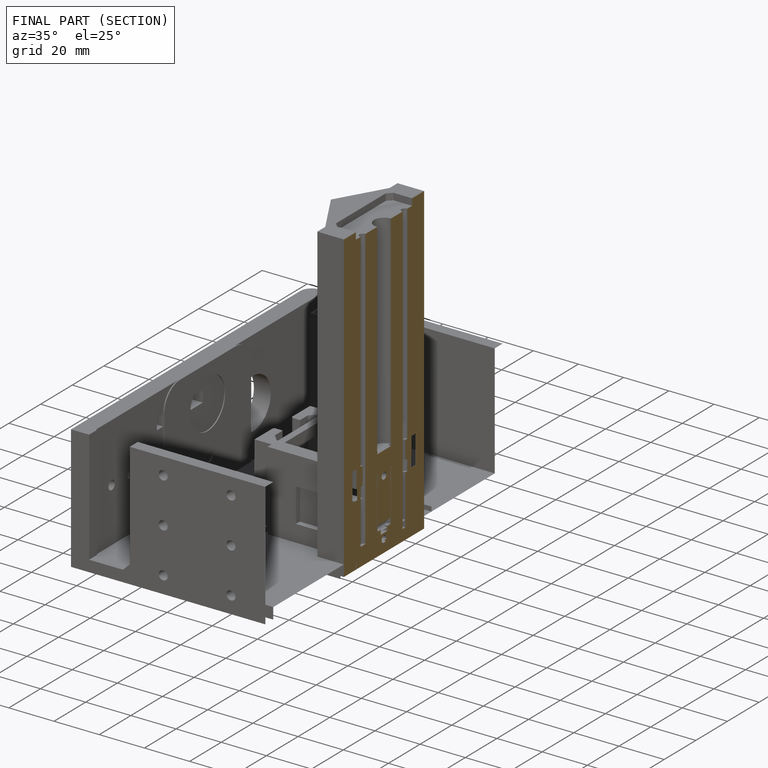
[diagram: finished part — half-section view (interior)]
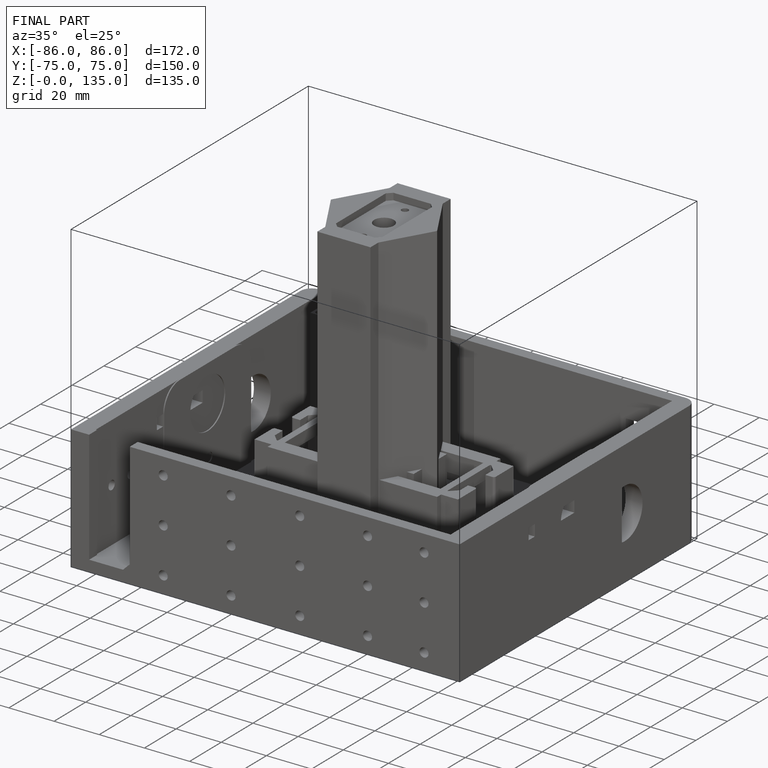
[diagram: finished part — iso view with bounding-box wireframe]
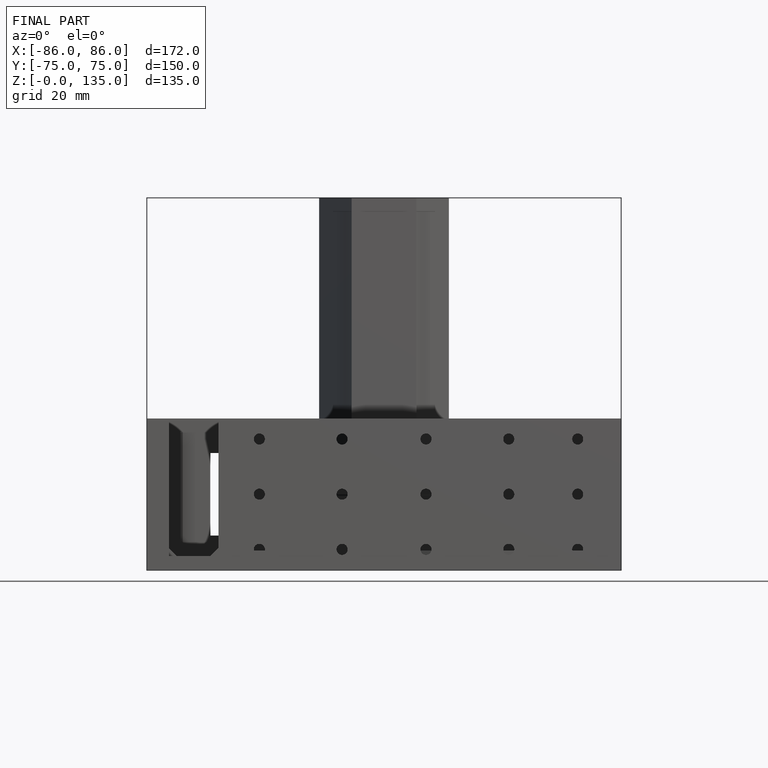
[diagram: finished part — front view with bounding-box wireframe]
